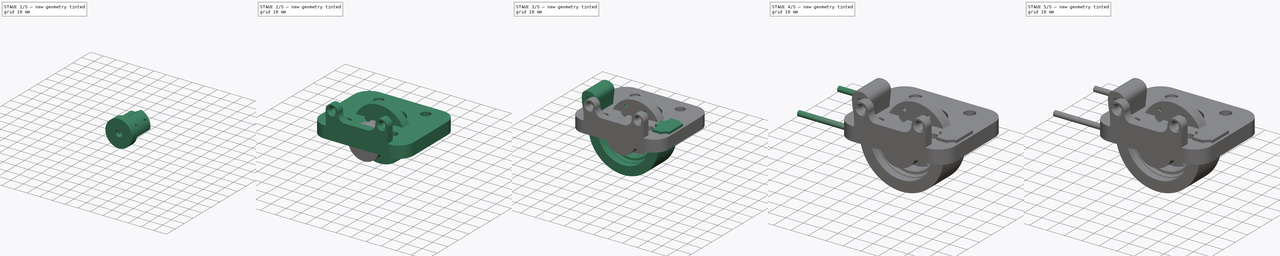
[diagram: build sequence overview — one tinted view per stage of 5, left to right]
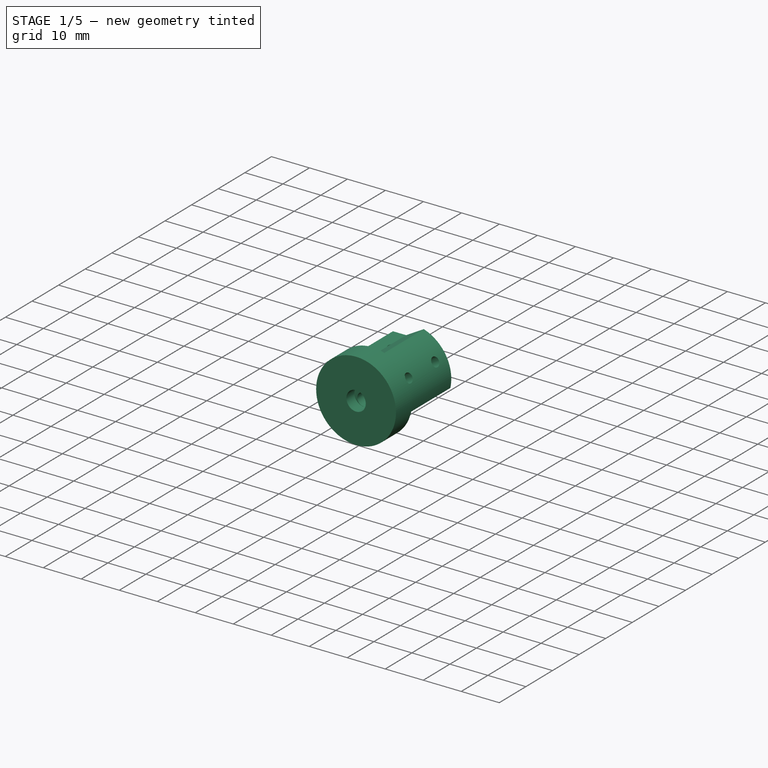
[diagram: stage 1 of 5 — iso view after this stage's code; geometry added in this stage tinted green]
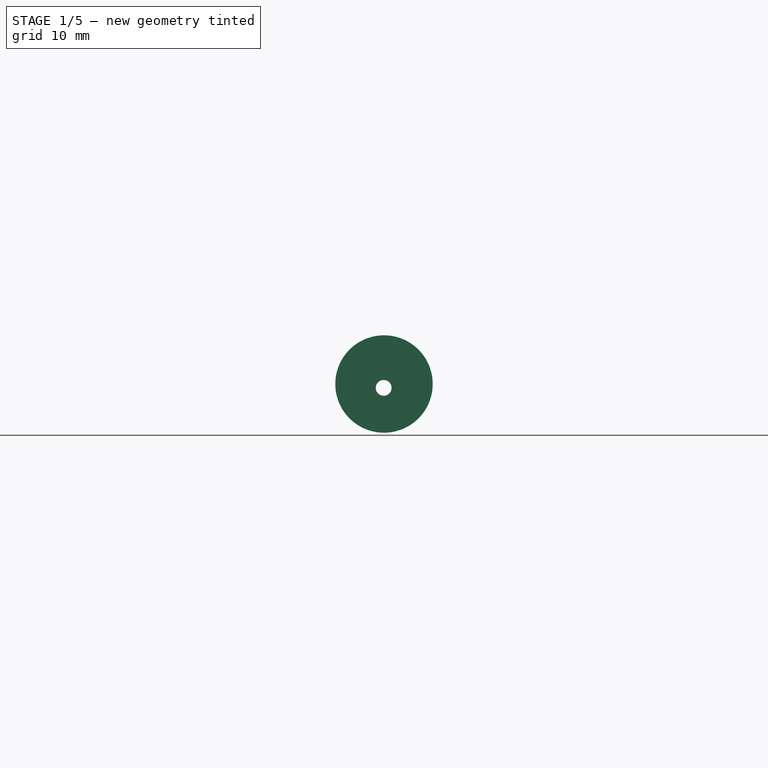
[diagram: stage 1 of 5 — front view after this stage's code; geometry added in this stage tinted green]
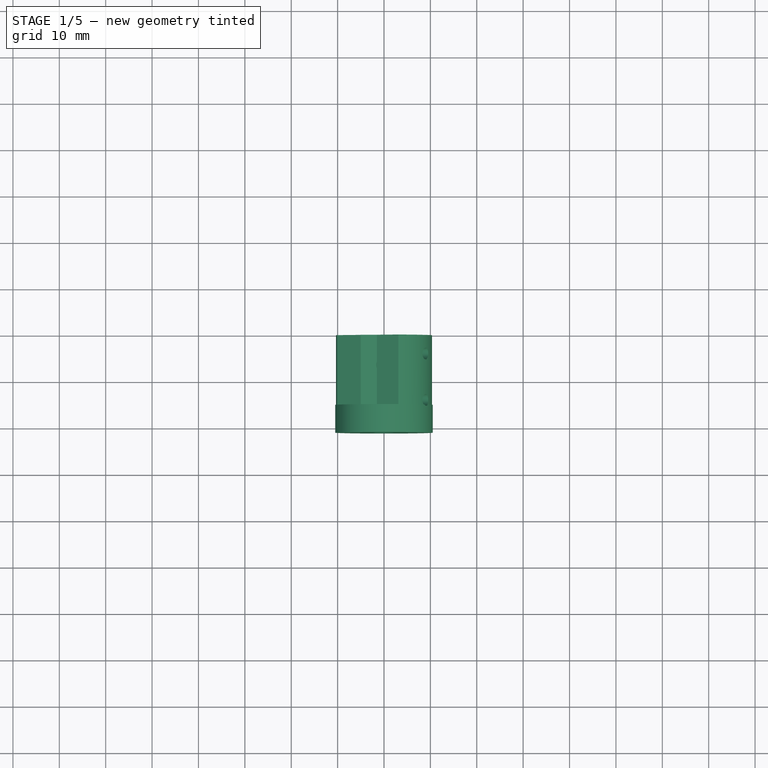
[diagram: stage 1 of 5 — top view after this stage's code; geometry added in this stage tinted green]
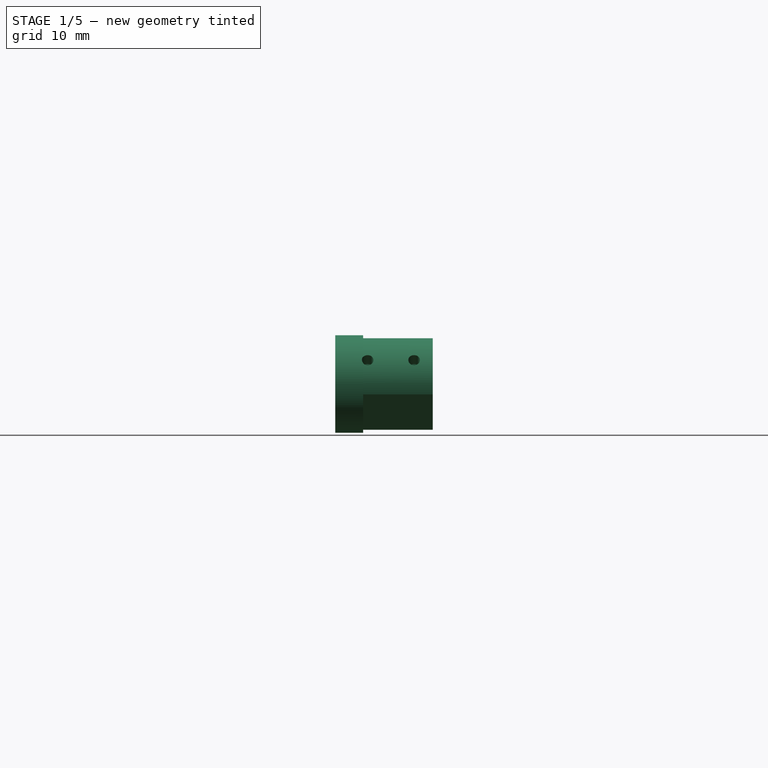
[diagram: stage 1 of 5 — right view after this stage's code; geometry added in this stage tinted green]
FCSTD DOCUMENT  (FreeCAD 0.20R29177 (Git))
Label: peristalticPump
License: All rights reserved
LicenseURL: http://en.wikipedia.org/wiki/All_rights_reserved
objects: Sketcher::SketchObject×37, PartDesign::Pad×20, PartDesign::Body×19, Part::Feature×16, PartDesign::Hole×12, App::Part×9, PartDesign::Pocket×4, PartDesign::PolarPattern×2, PartDesign::AdditivePipe×2, PartDesign::Chamfer×2, App::DocumentObjectGroup×1, PartDesign::Fillet×1, PartDesign::Plane×1
note: 157 computed .brp shape members not serialized (recipe doc carries the construction recipe); baked Part::Feature solids carry a one-line shape summary decoded from their .brp

FEATURE [Sketcher::SketchObject] Sketch001
  FullyConstrained = true
  MapMode = 5
  Placement = pos=(0,0,0) rot=(1,0,0;1.5708rad)
  Support = -> [XZ_Plane003]
  sketch-geometry (2):
    g0: Circle CenterX=0 CenterY=0 CenterZ=0 NormalX=0 NormalY=0 NormalZ=1 AngleXU=0 Radius=10.5
    g1: Circle CenterX=0 CenterY=0 CenterZ=0 NormalX=0 NormalY=0 NormalZ=1 AngleXU=0 Radius=2.55
  constraints (4):
    c: Coincident(g0,g-1)
    c: Diameter(g0) = 21
    c: Coincident(g1,g0)
    c: Diameter(g1) = 5.1
FEATURE [PartDesign::Pad] Pad001
  Direction = (0,-1,2e-16)
  Length = 21
  Length2 = 10
  Placement = pos=(0,0,0) rot=(1,0,0;1.5708rad)
  Profile = -> Sketch001
  ReferenceAxis = -> Sketch001 [N_Axis]
  Type = 0
FEATURE [Sketcher::SketchObject] Sketch003
  ExternalGeometry = -> [Pad001]
  FullyConstrained = false
  MapMode = 5
  Placement = pos=(0,0,0) rot=(-1,0,0;1.5708rad)
  Support = -> [Pad001]
  sketch-geometry (6):
    g0: ArcOfCircle CenterX=0 CenterY=0 CenterZ=0 NormalX=0 NormalY=0 NormalZ=1 AngleXU=0 Radius=10.35 StartAngle=1.87523 EndAngle=3.36076
    g1: LineSegment StartX=-3.10241 StartY=9.87408 StartZ=0 EndX=10.1045 EndY=2.24908 EndZ=0
    g2: Circle CenterX=0 CenterY=0 CenterZ=0 NormalX=0 NormalY=0 NormalZ=1 AngleXU=0 Radius=7
    g3: LineSegment StartX=-10.1024 StartY=-2.25027 StartZ=0 EndX=3.10447 EndY=-9.87527 EndZ=0
    g4: ArcOfCircle CenterX=0 CenterY=9e-16 CenterZ=0 NormalX=0 NormalY=0 NormalZ=1 AngleXU=0 Radius=10.3518 StartAngle=5.01698 EndAngle=6.5022
    g5: Circle CenterX=0 CenterY=0 CenterZ=0 NormalX=0 NormalY=0 NormalZ=1 AngleXU=0 Radius=20.6183
  constraints (16):
    c: Coincident(g0,g-1)
    c: Diameter(g-3) = 21
    c: Diameter(g0) = 20.7
    c: Coincident(g2,g0)
    c: Tangent(g1,g2)
    c: Diameter(g2) = 14
    c: Tangent(g3,g2)
    c: Parallel(g3,g1)
    c: Angle(g1,g-1) = 0.523599
    c: Coincident(g1,g4)
    c: Coincident(g3,g4)
    c: Coincident(g3,g0)
    c: Coincident(g1,g0)
    c: Distance(g1) = 15.25
    c: Distance(g3) = 15.25
    c: Coincident(g5,g0)
FEATURE [PartDesign::Pocket] Pocket
  BaseFeature = -> Pad001
  Direction = (0,-1,2e-16)
  Length = 15
  Length2 = 6
  Placement = pos=(0,0,0) rot=(1,0,0;1.5708rad)
  Profile = -> Sketch003
  ReferenceAxis = -> Sketch003 [N_Axis]
  Type = 0
FEATURE [Sketcher::SketchObject] Sketch014
  FullyConstrained = false
  MapMode = 5
  Placement = pos=(0,0,0) rot=(-1,0,0;1.5708rad)
  Support = -> [PolarPattern001]
  sketch-geometry (1):
    g0: Circle CenterX=-5.5 CenterY=3 CenterZ=0 NormalX=0 NormalY=0 NormalZ=1 AngleXU=0 Radius=1.60208
  constraints (2):
    c: DistanceY(g-1,g0) = 3
    c: DistanceX(g-2,g0) = -5.5
FEATURE [Sketcher::SketchObject] Sketch015
  FullyConstrained = false
  MapMode = 5
  Placement = pos=(0,0,0) rot=(-1,0,0;1.5708rad)
  Support = -> [Pocket]
  sketch-geometry (1):
    g0: Circle CenterX=-5.5 CenterY=3 CenterZ=0 NormalX=0 NormalY=0 NormalZ=1 AngleXU=0 Radius=1.18365
  constraints (2):
    c: DistanceY(g-1,g0) = 3
    c: DistanceX(g-2,g0) = -5.5
FEATURE [PartDesign::Hole] Hole004
  BaseFeature = -> Pocket
  CustomThreadClearance = 0
  Depth = 5
  DepthType = 0
  Diameter = 2.5
  DrillForDepth = false
  DrillPoint = 1
  DrillPointAngle = 118
  HoleCutCountersinkAngle = 90
  HoleCutCustomValues = false
  HoleCutDepth = 0
  HoleCutDiameter = 6.1
  HoleCutType = 0
  ModelThread = false
  Placement = pos=(0,0,0) rot=(1,0,0;1.5708rad)
  Profile = -> Sketch015
  Tapered = false
  TaperedAngle = 90
  ThreadClass = 0
  ThreadDepth = 5
  ThreadDepthType = 0
  ThreadDirection = 0
  ThreadFit = 0
  ThreadSize = 9
  ThreadType = 1
  Threaded = true
  UseCustomThreadClearance = false
FEATURE [PartDesign::Body] Body019  label="HoseLock"
  Group = -> [Sketch028,Pad018,Sketch030,Hole006,Sketch031,AdditivePipe001,Sketch032,Pad019,Chamfer]
  Origin = -> Origin029
  Placement = pos=(0,66.5,0) rot=(0,0,1;0rad)
  Tip = -> Chamfer
FEATURE [Sketcher::SketchObject] Sketch033
  FullyConstrained = false
  MapMode = 5
  Placement = pos=(0,0,0) rot=(1,0,0;1.5708rad)
  Support = -> [XZ_Plane030]
  sketch-geometry (4):
    g0: ArcOfCircle CenterX=0 CenterY=0 CenterZ=0 NormalX=0 NormalY=0 NormalZ=1 AngleXU=0 Radius=5 StartAngle=3.14159 EndAngle=6.28319
    g1: LineSegment StartX=5 StartY=0 StartZ=0 EndX=5 EndY=7.20089 EndZ=0
    g2: LineSegment StartX=-5 StartY=7.20089 StartZ=0 EndX=-5 EndY=0 EndZ=0
    g3: LineSegment StartX=-5 StartY=7.20089 StartZ=0 EndX=5 EndY=7.20089 EndZ=0
  constraints (9):
    c: Tangent(g0,g1) = -1.5708
    c: Tangent(g2,g0) = -1.5708
    c: Coincident(g0,g-1)
    c: Radius(g0) = 5
    c: Vertical(g2)
    c: Vertical(g1)
    c: Coincident(g3,g2)
    c: Coincident(g3,g1)
    c: Horizontal(g3)
FEATURE [PartDesign::Pad] Pad020
  Direction = (0,-1,2e-16)
  Length = 18
  Length2 = 10
  Placement = pos=(0,0,0) rot=(1,0,0;1.5708rad)
  Profile = -> Sketch033
  ReferenceAxis = -> Sketch033 [N_Axis]
  Type = 0
FEATURE [Sketcher::SketchObject] Sketch034
  FullyConstrained = false
  MapMode = 5
  Placement = pos=(0,0,0) rot=(-1,0,0;1.5708rad)
  Support = -> [Pad020]
  sketch-geometry (4):
    g0: LineSegment StartX=-7.08693 StartY=5.39137 StartZ=0 EndX=5.72343 EndY=5.39137 EndZ=0
    g1: LineSegment StartX=5.72343 StartY=5.39137 StartZ=0 EndX=5.72343 EndY=-3.24482 EndZ=0
    g2: LineSegment StartX=5.72343 StartY=-3.24482 StartZ=0 EndX=-7.08693 EndY=-3.24482 EndZ=0
    g3: LineSegment StartX=-7.08693 StartY=-3.24482 StartZ=0 EndX=-7.08693 EndY=5.39137 EndZ=0
  constraints (8):
    c: Coincident(g0,g1)
    c: Coincident(g1,g2)
    c: Coincident(g2,g3)
    c: Coincident(g3,g0)
    c: Horizontal(g0)
    c: Horizontal(g2)
    c: Vertical(g1)
    c: Vertical(g3)
FEATURE [PartDesign::Pocket] Pocket003
  BaseFeature = -> Pad020
  Direction = (0,-1,2e-16)
  Length = 10
  Length2 = 5
  Placement = pos=(0,0,0) rot=(1,0,0;1.5708rad)
  Profile = -> Sketch034
  ReferenceAxis = -> Sketch034 [N_Axis]
  Type = 0
FEATURE [Sketcher::SketchObject] Sketch035
  FullyConstrained = true
  MapMode = 5
  Placement = pos=(0,-10,2.2e-15) rot=(-1,0,0;1.5708rad)
  Support = -> [Pocket003]
FEATURE [Sketcher::SketchObject] Sketch036
  FullyConstrained = false
  MapMode = 5
  Placement = pos=(0,-10,2.2e-15) rot=(-1,0,0;1.5708rad)
  Support = -> [Pocket003]
  sketch-geometry (1):
    g0: Circle CenterX=-0.07012 CenterY=0.834162 CenterZ=0 NormalX=0 NormalY=0 NormalZ=1 AngleXU=0 Radius=2.03557
FEATURE [PartDesign::Hole] Hole007
  BaseFeature = -> Pocket003
  CustomThreadClearance = 0
  Depth = 25
  DepthType = 0
  Diameter = 3.4
  DrillForDepth = false
  DrillPoint = 1
  DrillPointAngle = 118
  HoleCutCountersinkAngle = 90
  HoleCutCustomValues = false
  HoleCutDepth = 3.4
  HoleCutDiameter = 6.1
  HoleCutType = 1
  ModelThread = false
  Placement = pos=(0,0,0) rot=(1,0,0;1.5708rad)
  Profile = -> Sketch036
  Tapered = false
  TaperedAngle = 90
  ThreadClass = 0
  ThreadDepth = 25
  ThreadDepthType = 0
  ThreadDirection = 0
  ThreadFit = 0
  ThreadSize = 9
  ThreadType = 1
  Threaded = false
  UseCustomThreadClearance = false
FEATURE [Sketcher::SketchObject] Sketch037
  FullyConstrained = false
  MapMode = 5
  Placement = pos=(0,7e-16,3.24482) rot=(1,0,0;3.14159rad)
  Support = -> [Hole007]
  sketch-geometry (1):
    g0: Circle CenterX=0 CenterY=6.489 CenterZ=0 NormalX=0 NormalY=0 NormalZ=1 AngleXU=0 Radius=1.99675
  constraints (1):
    c: PointOnObject(g0,g-2)
FEATURE [Part::Feature] M3x20_DIN_916
  Placement = pos=(-15.5,45,15.5) rot=(0,0,1;0rad)
  shape: bbox 6.44 x 23 x 5.667 mm, 458 faces, 0 solids (baked)
FEATURE [Part::Feature] M3x20_DIN_917
  Placement = pos=(24,53.5,20) rot=(0,0,1;0rad)
  shape: bbox 6.44 x 23 x 5.667 mm, 458 faces, 0 solids (baked)
FEATURE [Part::Feature] M3x20_DIN_918
  Placement = pos=(23.8,60.1,15.8) rot=(1,0,0;1.5708rad)
  shape: bbox 6.44 x 5.667 x 23 mm, 458 faces, 0 solids (baked)
FEATURE [App::DocumentObjectGroup] Group  label="Hardware"
  Group = -> [Part__Feature009,Part__Feature007,Part__Feature008,M3x20_DIN_912,M3x20_DIN_916,M3x20_DIN_914,M3x20_DIN_915,M3x20_DIN_913,M3x20_DIN_917,M3x20_DIN_918]
FEATURE [PartDesign::Hole] Hole008
  BaseFeature = -> Hole007
  CustomThreadClearance = 0
  Depth = 25
  DepthType = 0
  Diameter = 3.4
  DrillForDepth = false
  DrillPoint = 1
  DrillPointAngle = 118
  HoleCutCountersinkAngle = 90
  HoleCutCustomValues = false
  HoleCutDepth = 0
  HoleCutDiameter = 6.1
  HoleCutType = 0
  ModelThread = false
  Placement = pos=(0,0,0) rot=(1,0,0;1.5708rad)
  Profile = -> Sketch037
  Tapered = false
  TaperedAngle = 90
  ThreadClass = 0
  ThreadDepth = 25
  ThreadDepthType = 0
  ThreadDirection = 0
  ThreadFit = 0
  ThreadSize = 9
  ThreadType = 1
  Threaded = false
  UseCustomThreadClearance = false
FEATURE [PartDesign::Chamfer] Chamfer001
  Angle = 45
  Base = -> Hole008 [Edge6]
  BaseFeature = -> Hole008
  ChamferType = 0
  FlipDirection = false
  Placement = pos=(0,0,0) rot=(1,0,0;1.5708rad)
  Size = 1
  Size2 = 1
  SupportTransform = false
  UseAllEdges = false
FEATURE [PartDesign::Body] Body  label="nema17base"
  Group = -> [Sketch,Pad,Hole,Sketch029,Hole005,Sketch038,Pad021,Hole009,Hole010,Fillet]
  Origin = -> Origin001
  Placement = pos=(0,40,-8.9e-15) rot=(1,0,0;4.71239rad)
  Tip = -> Fillet
FEATURE [PartDesign::Plane] DatumPlane
  AttachmentOffset = pos=(2,0,0) rot=(0,-1,0;1.0472rad)
  Length = 79.989
  MapMode = 3
  Placement = pos=(2,0,0) rot=(0.866025,0,-0.5;3.14159rad)
  ResizeMode = 0
  Support = -> [Hole004]
  Width = 61.6877
FEATURE [Sketcher::SketchObject] Sketch039
  FullyConstrained = false
  MapMode = 5
  Placement = pos=(2,0,0) rot=(0.866025,0,-0.5;3.14159rad)
  Support = -> [DatumPlane]
  sketch-geometry (2):
    g0: Circle CenterX=-0.991399 CenterY=14.0194 CenterZ=0 NormalX=0 NormalY=0 NormalZ=1 AngleXU=0 Radius=1.26617
    g1: Circle CenterX=-0.991399 CenterY=4.01445 CenterZ=0 NormalX=0 NormalY=0 NormalZ=1 AngleXU=0 Radius=1.26572
  constraints (1):
    c: Vertical(g1,g0)
FEATURE [PartDesign::Hole] Hole011
  BaseFeature = -> Hole004
  CustomThreadClearance = 0
  Depth = 10
  DepthType = 0
  Diameter = 2.5
  DrillForDepth = false
  DrillPoint = 1
  DrillPointAngle = 118
  HoleCutCountersinkAngle = 90
  HoleCutCustomValues = false
  HoleCutDepth = 0
  HoleCutDiameter = 6.1
  HoleCutType = 0
  ModelThread = false
  Placement = pos=(0,0,0) rot=(1,0,0;1.5708rad)
  Profile = -> Sketch039
  Tapered = false
  TaperedAngle = 90
  ThreadClass = 0
  ThreadDepth = 10
  ThreadDepthType = 0
  ThreadDirection = 0
  ThreadFit = 0
  ThreadSize = 9
  ThreadType = 1
  Threaded = true
  UseCustomThreadClearance = false
FEATURE [PartDesign::Body] Body001  label="rotorShaftSet"
  Group = -> [Sketch001,Pad001,Sketch003,Pocket,Sketch015,Hole004,DatumPlane,Sketch039,Hole011]
  Origin = -> Origin003
  Placement = pos=(0,64,0) rot=(0,0,1;0rad)
  Tip = -> Hole011
FEATURE [App::Part] Part
  Group = -> [Body,Body001,Body002,Body007,Body019,Body020]
  Origin = -> Origin
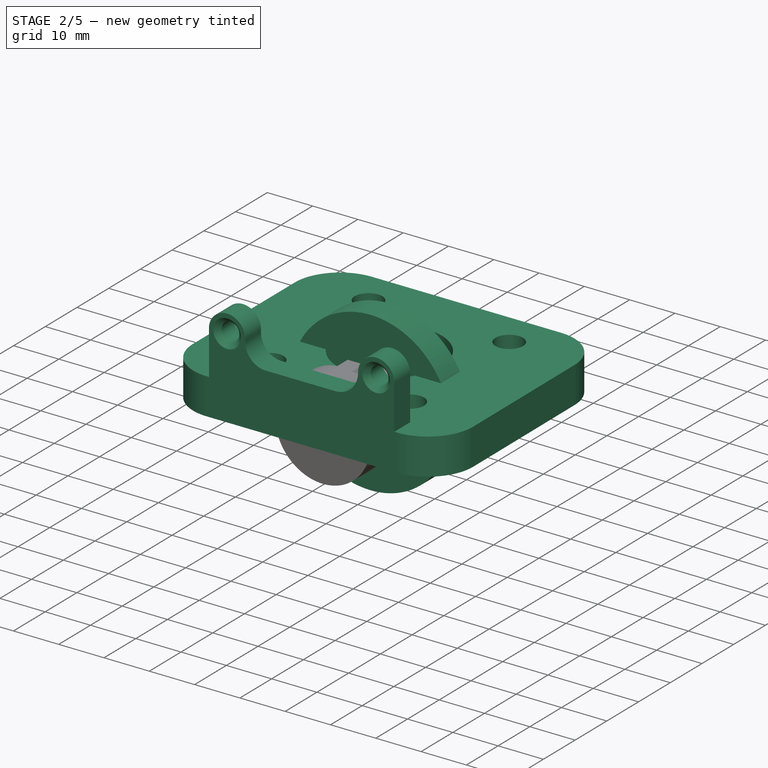
[diagram: stage 2 of 5 — iso view after this stage's code; geometry added in this stage tinted green]
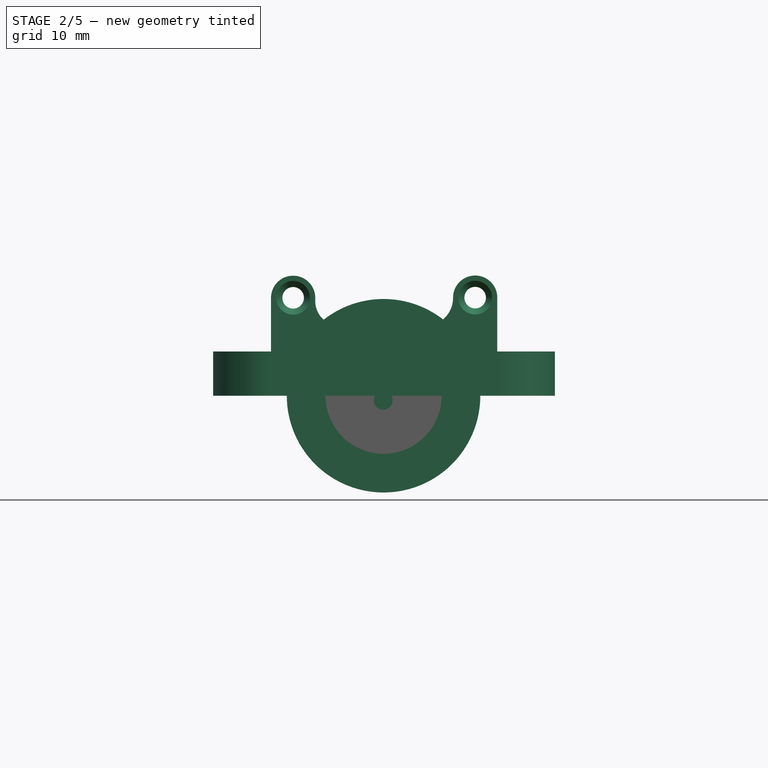
[diagram: stage 2 of 5 — front view after this stage's code; geometry added in this stage tinted green]
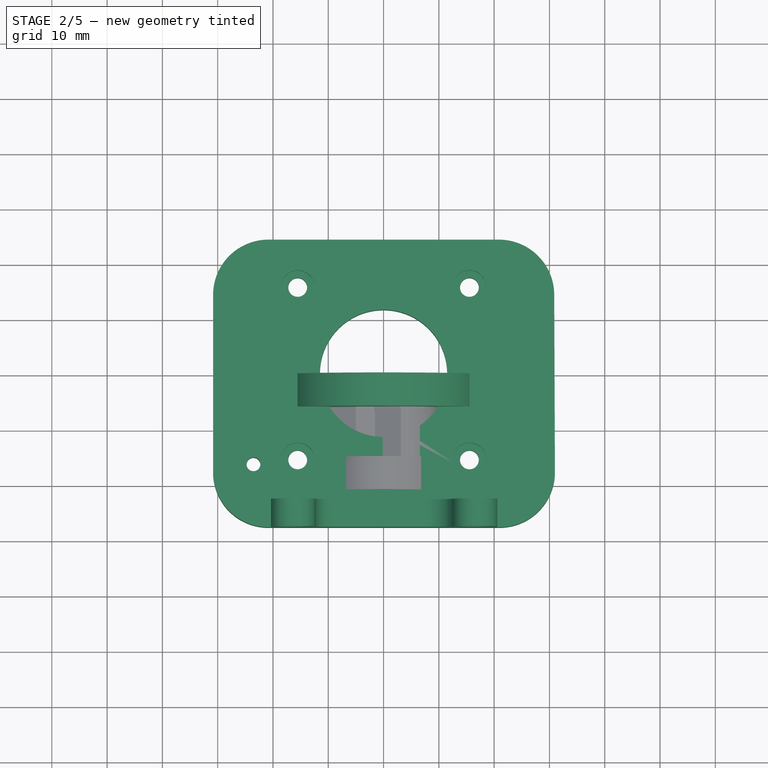
[diagram: stage 2 of 5 — top view after this stage's code; geometry added in this stage tinted green]
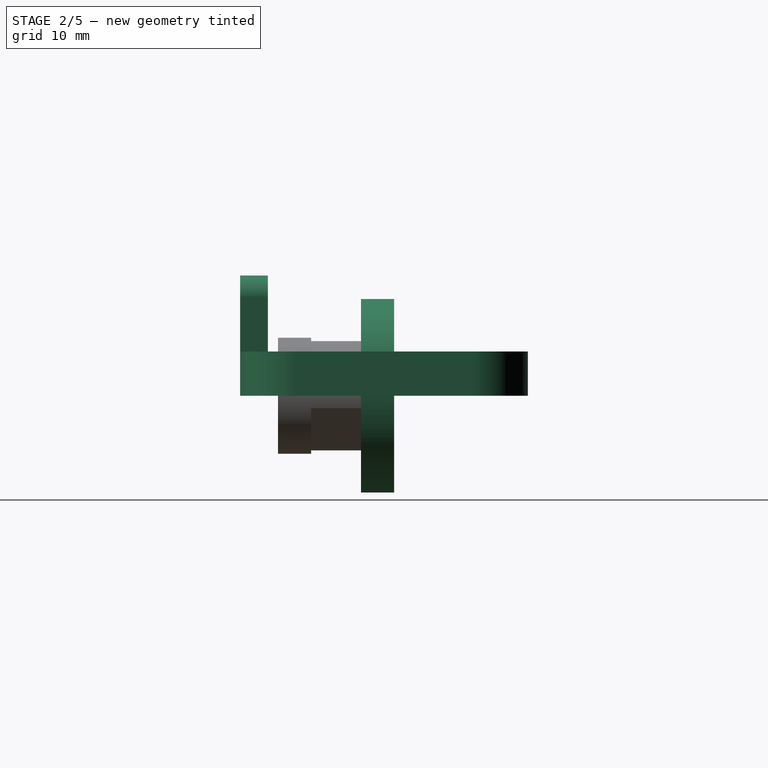
[diagram: stage 2 of 5 — right view after this stage's code; geometry added in this stage tinted green]
FEATURE [Sketcher::SketchObject] Sketch
  FullyConstrained = false
  MapMode = 5
  Support = -> [XY_Plane001]
  sketch-geometry (9):
    g0: LineSegment StartX=-30.8307 StartY=24.1824 StartZ=0 EndX=30.8307 EndY=24.1824 EndZ=0
    g1: LineSegment StartX=30.8307 StartY=24.1824 StartZ=0 EndX=31.031 EndY=-27.8428 EndZ=0
    g2: LineSegment StartX=31.031 StartY=-27.8428 StartZ=0 EndX=-30.8307 EndY=-27.8428 EndZ=0
    g3: LineSegment StartX=-30.8307 StartY=-27.8428 StartZ=0 EndX=-30.8307 EndY=24.1824 EndZ=0
    g4: Circle CenterX=0 CenterY=0 CenterZ=0 NormalX=0 NormalY=0 NormalZ=1 AngleXU=0 Radius=11.5
    g5: Circle CenterX=-15.5285 CenterY=15.5978 CenterZ=0 NormalX=0 NormalY=0 NormalZ=1 AngleXU=0 Radius=1.5
    g6: Circle CenterX=15.5285 CenterY=15.5978 CenterZ=0 NormalX=0 NormalY=0 NormalZ=1 AngleXU=0 Radius=1.5
    g7: Circle CenterX=15.5285 CenterY=-15.5978 CenterZ=0 NormalX=0 NormalY=0 NormalZ=1 AngleXU=0 Radius=1.5
    g8: Circle CenterX=-15.5285 CenterY=-15.5978 CenterZ=0 NormalX=0 NormalY=0 NormalZ=1 AngleXU=0 Radius=1.5
  constraints (17):
    c: Coincident(g0,g1)
    c: Coincident(g1,g2)
    c: Coincident(g2,g3)
    c: Coincident(g3,g0)
    c: Horizontal(g2)
    c: Vertical(g3)
    c: Symmetric(g0,g0,g-2)
    c: Symmetric(g0,g1,g-1)
    c: Coincident(g4,g-1)
    c: Symmetric(g5,g8,g-1)
    c: Symmetric(g5,g6,g-2)
    c: Symmetric(g7,g6,g-1)
    c: Diameter(g7) = 3
    c: Equal(g7,g6)
    c: Equal(g7,g8)
    c: Equal(g7,g5)
    c: Diameter(g4) = 23
FEATURE [Part::Feature] Part__Feature  label="nema17_bottom_40mm___ _________"
  shape: bbox 42.33 x 12 x 42.33 mm, 63 faces (baked)
FEATURE [Part::Feature] Part__Feature001  label="radial ball bearing_68_din_PreviewCfg"
  Placement = pos=(3.5e-15,4.0875,6.9e-15) rot=(0,0,-1;1.5708rad)
  shape: bbox 13.75 x 3.175 x 13.75 mm, 102 faces (baked)
FEATURE [Part::Feature] Part__Feature002  label="nema17_middle_40mm___ _________"
  Placement = pos=(6.9e-15,8.5,-1.04e-14) rot=(0,0,1;0rad)
  shape: bbox 42.3 x 23.5 x 42.3 mm, 28 faces (baked)
FEATURE [Part::Feature] Part__Feature003  label="nema17_top_40mm___ _________"
  Placement = pos=(6.9e-15,32,3.5e-15) rot=(0,0,1;0rad)
  shape: bbox 42.63 x 12.6 x 42.63 mm, 73 faces (baked)
FEATURE [Part::Feature] Part__Feature004  label="radial ball bearing_68_din_PreviewCfg001"
  Placement = pos=(6.9e-15,39.0125,3.5e-15) rot=(0,0,1;1.5708rad)
  shape: bbox 13.75 x 3.175 x 13.75 mm, 102 faces (baked)
FEATURE [Part::Feature] Part__Feature005  label="nema17_shaft_40mm___ _________"
  Placement = pos=(3.47e-14,2,3.12e-14) rot=(0,-1,0;1.99625rad)
  shape: bbox 5 x 60 x 5 mm, 10 faces (baked)
FEATURE [App::Part] _7HM15_0904S  label="17HM15-0904S"
  Group = -> [Part__Feature,Part__Feature001,Part__Feature002,Part__Feature003,Part__Feature004,Part__Feature005]
  Origin = -> Origin002
FEATURE [PartDesign::Pad] Pad
  Direction = (0,0,1)
  Length = 8
  Length2 = 10
  Profile = -> Sketch
  ReferenceAxis = -> Sketch [N_Axis]
  Type = 0
FEATURE [PartDesign::Hole] Hole
  BaseFeature = -> Pad
  CustomThreadClearance = 0
  Depth = 25
  DepthType = 0
  Diameter = 3.4
  DrillForDepth = false
  DrillPoint = 1
  DrillPointAngle = 118
  HoleCutCountersinkAngle = 90
  HoleCutCustomValues = false
  HoleCutDepth = 3.4
  HoleCutDiameter = 6.1
  HoleCutType = 1
  ModelThread = false
  Profile = -> Pad [Edge21,Edge18,Edge27,Edge24]
  Tapered = false
  TaperedAngle = 90
  ThreadClass = 0
  ThreadDepth = 25
  ThreadDepthType = 0
  ThreadDirection = 0
  ThreadFit = 0
  ThreadSize = 9
  ThreadType = 1
  Threaded = false
  UseCustomThreadClearance = false
FEATURE [PartDesign::Body] Body002  label="rotorBasePlate"
  Group = -> [Sketch002,Pad002,Sketch004,Pocket001,Sketch005,Hole001,PolarPattern]
  Origin = -> Origin004
  Placement = pos=(0,54,0) rot=(0,0,1;0rad)
  Tip = -> PolarPattern
FEATURE [Sketcher::SketchObject] Sketch011
  FullyConstrained = true
  MapMode = 5
  Placement = pos=(0,0,0) rot=(1,0,0;1.5708rad)
  Support = -> [XZ_Plane011]
  sketch-geometry (1):
    g0: Circle CenterX=0 CenterY=0 CenterZ=0 NormalX=0 NormalY=0 NormalZ=1 AngleXU=0 Radius=17.5
  constraints (2):
    c: Coincident(g0,g-1)
    c: Diameter(g0) = 35
FEATURE [PartDesign::Pad] Pad007
  Direction = (0,-1,2e-16)
  Length = 6
  Length2 = 10
  Placement = pos=(0,0,0) rot=(1,0,0;1.5708rad)
  Profile = -> Sketch011
  ReferenceAxis = -> Sketch011 [N_Axis]
  Type = 0
FEATURE [Sketcher::SketchObject] Sketch029
  FullyConstrained = false
  MapMode = 5
  Placement = pos=(0,0,8) rot=(0,0,1;0rad)
  Support = -> [Hole]
  sketch-geometry (1):
    g0: Circle CenterX=-23.5251 CenterY=-16.4444 CenterZ=0 NormalX=0 NormalY=0 NormalZ=1 AngleXU=0 Radius=4.7481
FEATURE [PartDesign::Hole] Hole005
  BaseFeature = -> Hole
  CustomThreadClearance = 0
  Depth = 25
  DepthType = 0
  Diameter = 2.5
  DrillForDepth = false
  DrillPoint = 1
  DrillPointAngle = 118
  HoleCutCountersinkAngle = 90
  HoleCutCustomValues = false
  HoleCutDepth = 0
  HoleCutDiameter = 6.1
  HoleCutType = 0
  ModelThread = false
  Profile = -> Sketch029
  Tapered = false
  TaperedAngle = 90
  ThreadClass = 0
  ThreadDepth = 25
  ThreadDepthType = 0
  ThreadDirection = 0
  ThreadFit = 0
  ThreadSize = 9
  ThreadType = 1
  Threaded = true
  UseCustomThreadClearance = false
FEATURE [Sketcher::SketchObject] Sketch038
  FullyConstrained = false
  MapMode = 5
  Placement = pos=(0,-27.8428,0) rot=(1,0,0;1.5708rad)
  Support = -> [Hole005]
  sketch-geometry (13):
    g0: LineSegment StartX=20.5693 StartY=17.7422 StartZ=0 EndX=20.5693 EndY=5.33648 EndZ=0
    g1: LineSegment StartX=20.5693 StartY=5.33648 StartZ=0 EndX=-20.3519 EndY=5.33648 EndZ=0
    g2: LineSegment StartX=-20.3519 StartY=5.33648 StartZ=0 EndX=-20.3519 EndY=17.7107 EndZ=0
    g3: Circle CenterX=-16.3519 CenterY=17.7107 CenterZ=0 NormalX=0 NormalY=0 NormalZ=1 AngleXU=0 Radius=0.49152
    g4: Circle CenterX=16.5693 CenterY=17.7422 CenterZ=0 NormalX=0 NormalY=0 NormalZ=1 AngleXU=0 Radius=0.40481
    g5: ArcOfCircle CenterX=-16.3519 CenterY=17.7107 CenterZ=0 NormalX=0 NormalY=0 NormalZ=1 AngleXU=0 Radius=4 StartAngle=1.00416 EndAngle=3.14159
    g6: ArcOfCircle CenterX=16.5693 CenterY=17.7422 CenterZ=0 NormalX=0 NormalY=0 NormalZ=1 AngleXU=0 Radius=4 StartAngle=0 EndAngle=1.53724
    g7: LineSegment StartX=-12.3519 StartY=17.7107 StartZ=0 EndX=-12.3519 EndY=17.1163 EndZ=0
    g8: LineSegment StartX=-7.85797 StartY=12.6224 StartZ=0 EndX=7.49862 EndY=12.6224 EndZ=0
    g9: ArcOfCircle CenterX=-16.3519 CenterY=17.7107 CenterZ=0 NormalX=0 NormalY=0 NormalZ=1 AngleXU=0 Radius=4 StartAngle=0 EndAngle=1.00416
    g10: ArcOfCircle CenterX=-7.85797 CenterY=17.1163 CenterZ=0 NormalX=0 NormalY=0 NormalZ=1 AngleXU=0 Radius=4.49393 StartAngle=3.14159 EndAngle=4.71239
    g11: ArcOfCircle CenterX=7.49862 CenterY=17.6932 CenterZ=0 NormalX=0 NormalY=0 NormalZ=1 AngleXU=0 Radius=5.07085 StartAngle=4.71239 EndAngle=6.28858
    g12: ArcOfCircle CenterX=16.5693 CenterY=17.7422 CenterZ=0 NormalX=0 NormalY=0 NormalZ=1 AngleXU=0 Radius=4 StartAngle=1.53724 EndAngle=3.14699
  constraints (23):
    c: Coincident(g0,g1)
    c: Coincident(g1,g2)
    c: Horizontal(g1)
    c: Vertical(g0)
    c: Vertical(g2)
    c: Tangent(g2,g5) = 1.5708
    c: Tangent(g0,g6) = 1.5708
    c: Radius(g6) = 4
    c: Radius(g5) = 4
    c: Vertical(g7)
    c: Horizontal(g8)
    c: Tangent(g7,g9) = 1.5708
    c: Tangent(g7,g10) = -1.5708
    c: Tangent(g8,g10) = -1.5708
    c: Tangent(g8,g11) = -1.5708
    c: Radius(g12) = 4
    c: Tangent(g6,g12) = -1.5708
    c: Tangent(g12,g11) = 1.5708
    c: Coincident(g6,g4)
    c: Radius(g9) = 4
    c: Tangent(g9,g5,g5) = -1.5708
    c: Coincident(g5,g9)
    c: Coincident(g5,g3)
FEATURE [PartDesign::Pad] Pad021
  BaseFeature = -> Hole005
  Direction = (0,-1,2e-16)
  Length = 5
  Length2 = 10
  Profile = -> Sketch038
  ReferenceAxis = -> Sketch038 [N_Axis]
  Reversed = true
  Type = 0
FEATURE [PartDesign::Hole] Hole009
  BaseFeature = -> Pad021
  CustomThreadClearance = 0
  Depth = 25
  DepthType = 0
  Diameter = 3.9
  DrillForDepth = false
  DrillPoint = 1
  DrillPointAngle = 118
  HoleCutCountersinkAngle = 90
  HoleCutCustomValues = false
  HoleCutDepth = 0
  HoleCutDiameter = 6.1
  HoleCutType = 2
  ModelThread = false
  Profile = -> Pad021 [Edge76,Edge75]
  Tapered = false
  TaperedAngle = 90
  ThreadClass = 0
  ThreadDepth = 25
  ThreadDepthType = 0
  ThreadDirection = 0
  ThreadFit = 0
  ThreadSize = 10
  ThreadType = 1
  Threaded = false
  UseCustomThreadClearance = false
FEATURE [PartDesign::Body] Body007  label="RotorLid"
  Group = -> [Sketch011,Pad007,Sketch012,Pocket002,Sketch013,Hole002,PolarPattern001,Sketch014,Hole003]
  Origin = -> Origin011
  Placement = pos=(0,68,0) rot=(0,0,1;0rad)
  Tip = -> Hole003
FEATURE [PartDesign::Hole] Hole010
  BaseFeature = -> Hole009
  CustomThreadClearance = 0
  Depth = 25
  DepthType = 0
  Diameter = 3.9
  DrillForDepth = false
  DrillPoint = 1
  DrillPointAngle = 118
  HoleCutCountersinkAngle = 90
  HoleCutCustomValues = false
  HoleCutDepth = 0
  HoleCutDiameter = 6.1
  HoleCutType = 2
  ModelThread = false
  Profile = -> Sketch038
  Tapered = false
  TaperedAngle = 90
  ThreadClass = 0
  ThreadDepth = 25
  ThreadDepthType = 0
  ThreadDirection = 0
  ThreadFit = 0
  ThreadSize = 10
  ThreadType = 1
  Threaded = false
  UseCustomThreadClearance = false
FEATURE [PartDesign::Body] Body020  label="ClosingPivot"
  Group = -> [Sketch033,Pad020,Sketch034,Pocket003,Sketch035,Sketch036,Hole007,Sketch037,Hole008,Chamfer001]
  Origin = -> Origin030
  Placement = pos=(24,66.5,19) rot=(0,1,0;3.14159rad)
  Tip = -> Chamfer001
FEATURE [PartDesign::Fillet] Fillet
  Base = -> Hole010 [Edge1,Edge5,Edge2,Edge8]
  BaseFeature = -> Hole010
  Radius = 10
  SupportTransform = false
  UseAllEdges = false
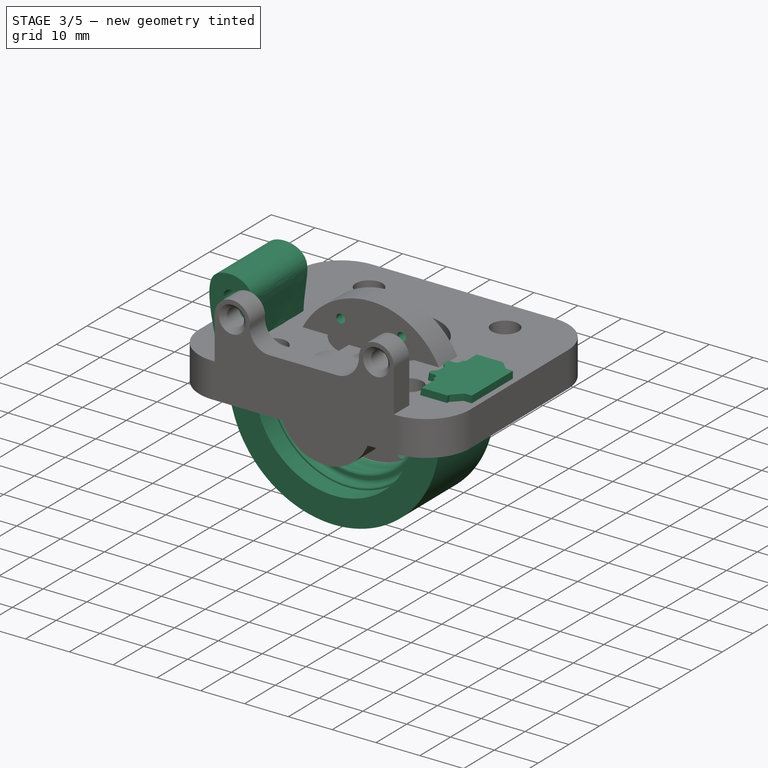
[diagram: stage 3 of 5 — iso view after this stage's code; geometry added in this stage tinted green]
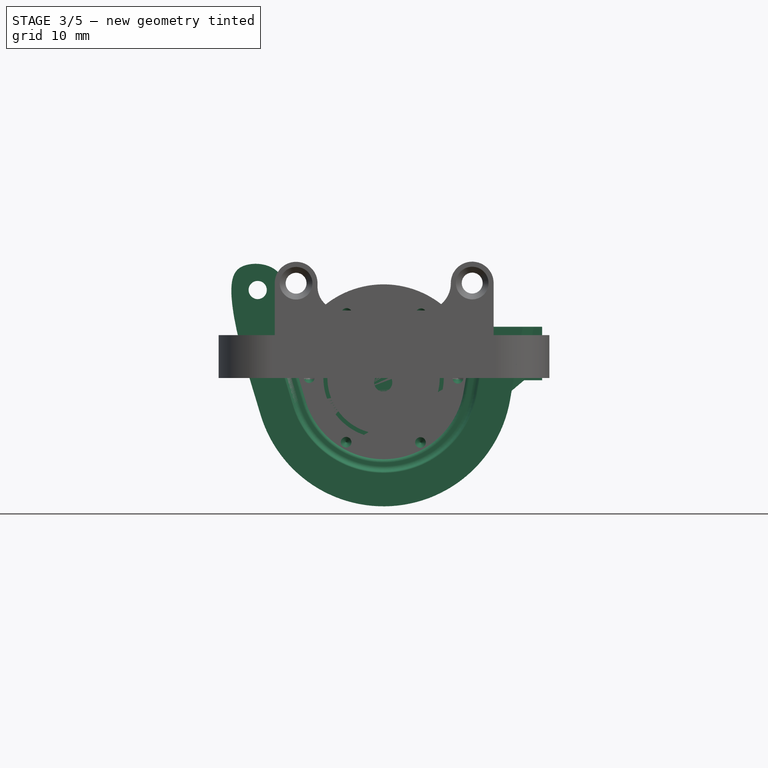
[diagram: stage 3 of 5 — front view after this stage's code; geometry added in this stage tinted green]
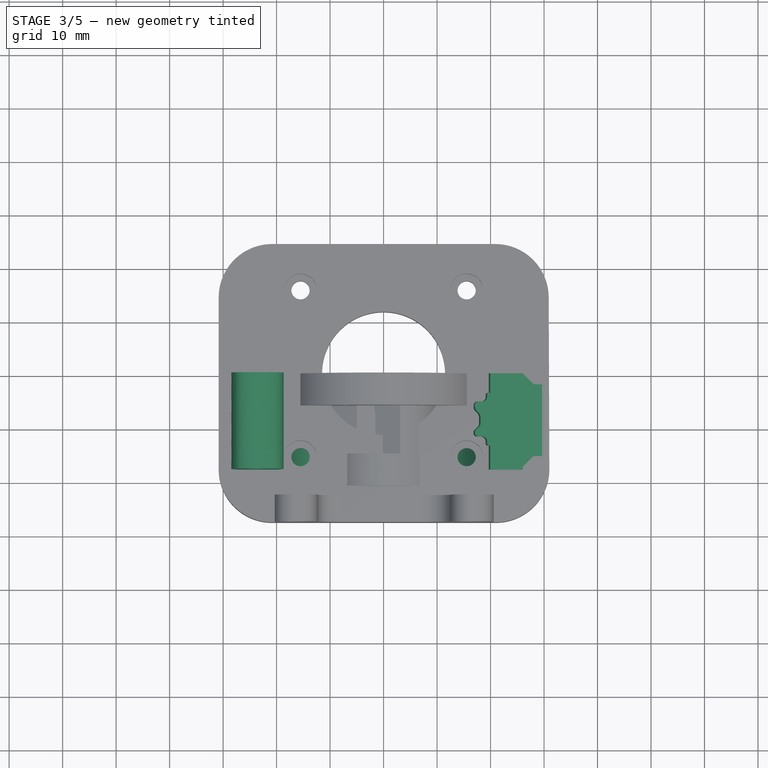
[diagram: stage 3 of 5 — top view after this stage's code; geometry added in this stage tinted green]
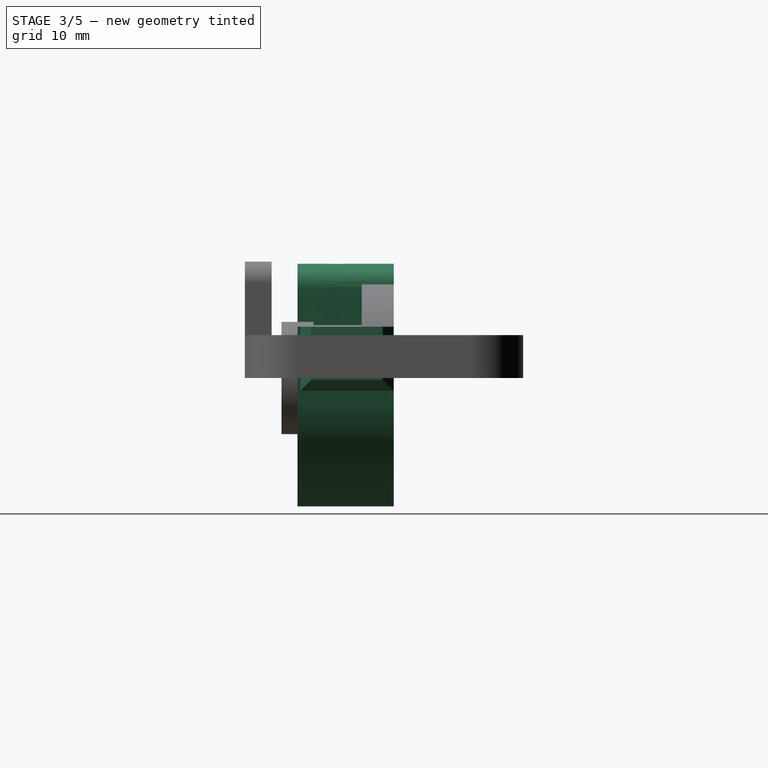
[diagram: stage 3 of 5 — right view after this stage's code; geometry added in this stage tinted green]
FEATURE [Sketcher::SketchObject] Sketch012
  FullyConstrained = false
  MapMode = 5
  Placement = pos=(0,-6,1.3e-15) rot=(1,0,0;1.5708rad)
  Support = -> [Pad007]
  sketch-geometry (4):
    g0: ArcOfCircle CenterX=0 CenterY=0 CenterZ=0 NormalX=0 NormalY=0 NormalZ=1 AngleXU=0 Radius=11.25 StartAngle=2.95239 EndAngle=4.37978
    g1: LineSegment StartX=3.69222 StartY=10.6269 StartZ=0 EndX=-11.0492 EndY=2.11587 EndZ=0
    g2: LineSegment StartX=-3.6732 StartY=-10.6334 StartZ=0 EndX=11.0454 EndY=-2.13564 EndZ=0
    g3: ArcOfCircle CenterX=0 CenterY=0 CenterZ=0 NormalX=0 NormalY=0 NormalZ=1 AngleXU=0 Radius=11.25 StartAngle=6.09219 EndAngle=7.51959
  constraints (10):
    c: Coincident(g0,g-1)
    c: Parallel(g2,g1)
    c: Diameter(g0) = 22.5
    c: Angle(g-1,g2) = 0.523599
    c: Coincident(g3,g1)
    c: Coincident(g0,g1)
    c: Equal(g0,g3)
    c: Coincident(g0,g2)
    c: Coincident(g3,g2)
    c: Coincident(g0,g3)
FEATURE [PartDesign::Pocket] Pocket002
  BaseFeature = -> Pad007
  Direction = (0,1,-2e-16)
  Length = 2
  Length2 = 5
  Placement = pos=(0,0,0) rot=(1,0,0;1.5708rad)
  Profile = -> Sketch012
  ReferenceAxis = -> Sketch012 [N_Axis]
  Type = 0
FEATURE [Sketcher::SketchObject] Sketch013
  FullyConstrained = false
  MapMode = 5
  Placement = pos=(0,-6,1.3e-15) rot=(1,0,0;1.5708rad)
  Support = -> [Pocket002]
  sketch-geometry (1):
    g0: Circle CenterX=7.00317 CenterY=12.0101 CenterZ=0 NormalX=0 NormalY=0 NormalZ=1 AngleXU=0 Radius=0.949969
FEATURE [PartDesign::Hole] Hole002  label="HoleRollerLid"
  BaseFeature = -> Pocket002
  CustomThreadClearance = 0
  Depth = 3
  DepthType = 0
  Diameter = 2
  DrillForDepth = false
  DrillPoint = 1
  DrillPointAngle = 118
  HoleCutCountersinkAngle = 90
  HoleCutCustomValues = false
  HoleCutDepth = 0
  HoleCutDiameter = 6.1
  HoleCutType = 0
  ModelThread = false
  Placement = pos=(0,0,0) rot=(1,0,0;1.5708rad)
  Profile = -> Sketch013
  Tapered = false
  TaperedAngle = 90
  ThreadClass = 0
  ThreadDepth = 3
  ThreadDepthType = 0
  ThreadDirection = 0
  ThreadFit = 0
  ThreadSize = 0
  ThreadType = 0
  Threaded = false
  UseCustomThreadClearance = false
FEATURE [PartDesign::PolarPattern] PolarPattern001
  Angle = 360
  Axis = -> Sketch013 [N_Axis]
  BaseFeature = -> Hole002
  Occurrences = 6
  Originals = -> [Hole002]
  Placement = pos=(0,0,0) rot=(1,0,0;1.5708rad)
FEATURE [PartDesign::Body] Body018
  Group = -> [Sketch026,Sketch027,AdditivePipe]
  Origin = -> Origin028
  Tip = -> AdditivePipe
FEATURE [App::Part] Part008  label="SiliconeHose3mm"
  Group = -> [Body018]
  Origin = -> Origin027
  Placement = pos=(0.1,57.7,-16.5) rot=(-0.57735,0.57735,0.57735;2.0944rad)
FEATURE [Part::Feature] M3x20_DIN_912
  Placement = pos=(15.5,45,15.5) rot=(0,0,1;0rad)
  shape: bbox 6.44 x 23 x 5.667 mm, 458 faces, 0 solids (baked)
FEATURE [Part::Feature] M3x20_DIN_913
  Placement = pos=(-23.5,63.5,16.5) rot=(0,0,1;0rad)
  shape: bbox 6.44 x 23 x 5.667 mm, 458 faces, 0 solids (baked)
FEATURE [Part::Feature] M3x20_DIN_914
  Placement = pos=(15.5,45,-15.5) rot=(0,0,1;0rad)
  shape: bbox 6.44 x 23 x 5.667 mm, 458 faces, 0 solids (baked)
FEATURE [Part::Feature] M3x20_DIN_915
  Placement = pos=(-15.5,45,-15.5) rot=(0,0,1;0rad)
  shape: bbox 6.44 x 23 x 5.667 mm, 458 faces, 0 solids (baked)
FEATURE [Sketcher::SketchObject] Sketch028
  FullyConstrained = false
  MapMode = 5
  Placement = pos=(0,0,0) rot=(1,0,0;1.5708rad)
  Support = -> [XZ_Plane029]
  sketch-geometry (18):
    g0: ArcOfCircle CenterX=0 CenterY=0 CenterZ=0 NormalX=0 NormalY=0 NormalZ=1 AngleXU=0 Radius=18 StartAngle=3.43516 EndAngle=6.11035
    g1: ArcOfCircle CenterX=0 CenterY=0 CenterZ=0 NormalX=0 NormalY=0 NormalZ=1 AngleXU=0 Radius=24 StartAngle=3.43516 EndAngle=6.11035
    g2-g7: Circle x6 (B-spline internal-alignment scaffolding for g8; pole/knot coordinates omitted)
    g8: BSplineCurve PolesCount=6 KnotsCount=4 Degree=3 IsPeriodic=0
    g9-g12: GeomPoint x4 (B-spline internal-alignment scaffolding for g8; pole/knot coordinates omitted)
    g13: LineSegment StartX=-22.9732 StartY=-6.94478 StartZ=0 EndX=-26.3444 EndY=4.20708 EndZ=0
    g14: LineSegment StartX=-17.2299 StartY=-5.20859 StartZ=0 EndX=-19.3342 EndY=1.75229 EndZ=0
    g15: LineSegment StartX=23.6424 StartY=-4.12744 StartZ=0 EndX=26.0359 EndY=9.58253 EndZ=0
    g16: LineSegment StartX=17.7318 StartY=-3.09558 StartZ=0 EndX=19.9451 EndY=9.58253 EndZ=0
    g17: LineSegment StartX=19.9451 StartY=9.58253 StartZ=0 EndX=26.0359 EndY=9.58253 EndZ=0
  constraints (19):
    c: Coincident(g0,g-1)
    c: Radius(g0) = 18
    c: Coincident(g1,g0)
    c: Radius(g1) = 24
    c: Weight(g2) = 1
    c: Equal(g2, g3-g7) x5
    c: InternalAlignment(g2-g7 -> g8) x6
    c: InternalAlignment(g9-g12 -> g8) x4
    c: Coincident(g14,g8)
    c: Coincident(g8,g13)
    c: Parallel(g13,g14)
    c: Coincident(g17,g16)
    c: Coincident(g17,g15)
    c: Parallel(g16,g15)
    c: Tangent(g0,g16) = -1.5708
    c: Tangent(g0,g14) = 1.5708
    c: Tangent(g1,g15) = -1.5708
    c: Tangent(g1,g13) = 1.5708
    c: Horizontal(g17)
FEATURE [PartDesign::Pad] Pad018
  Direction = (0,-1,2e-16)
  Length = 18
  Length2 = 10
  Placement = pos=(0,0,0) rot=(1,0,0;1.5708rad)
  Profile = -> Sketch028
  ReferenceAxis = -> Sketch028 [N_Axis]
  Type = 0
FEATURE [Sketcher::SketchObject] Sketch030
  FullyConstrained = false
  MapMode = 5
  Placement = pos=(0,0,0) rot=(-1,0,0;1.5708rad)
  Support = -> [Pad018]
  sketch-geometry (1):
    g0: Circle CenterX=-23.5329 CenterY=-16.4419 CenterZ=0 NormalX=0 NormalY=0 NormalZ=1 AngleXU=0 Radius=1.25457
FEATURE [PartDesign::Hole] Hole006
  BaseFeature = -> Pad018
  CustomThreadClearance = 0
  Depth = 25
  DepthType = 0
  Diameter = 3.4
  DrillForDepth = false
  DrillPoint = 1
  DrillPointAngle = 118
  HoleCutCountersinkAngle = 90
  HoleCutCustomValues = false
  HoleCutDepth = 3.4
  HoleCutDiameter = 6.1
  HoleCutType = 1
  ModelThread = false
  Placement = pos=(0,0,0) rot=(1,0,0;1.5708rad)
  Profile = -> Sketch030
  Tapered = false
  TaperedAngle = 90
  ThreadClass = 0
  ThreadDepth = 25
  ThreadDepthType = 0
  ThreadDirection = 0
  ThreadFit = 0
  ThreadSize = 9
  ThreadType = 1
  Threaded = false
  UseCustomThreadClearance = false
FEATURE [Sketcher::SketchObject] Sketch031
  FullyConstrained = false
  MapMode = 5
  Placement = pos=(0,2.1e-15,9.58253) rot=(0,0,1;3.14159rad)
  Support = -> [Hole006]
  sketch-geometry (22):
    g0: LineSegment StartX=-17.0848 StartY=6.01696 StartZ=0 EndX=-17.0848 EndY=6.21696 EndZ=0
    g1: LineSegment StartX=-17.4384 StartY=7.07043 StartZ=0 EndX=-17.7502 EndY=7.38223 EndZ=0
    g2: LineSegment StartX=-18.1184 StartY=8.27118 StartZ=0 EndX=-18.1184 EndY=9.4103 EndZ=0
    g3: LineSegment StartX=-17.8916 StartY=9.95782 StartZ=0 EndX=-17.2221 EndY=10.6273 EndZ=0
    g4: LineSegment StartX=-17.0848 StartY=10.9586 StartZ=0 EndX=-17.0848 EndY=11.1586 EndZ=0
    g5: LineSegment StartX=-17.7415 StartY=11.8153 StartZ=0 EndX=-18.408 EndY=11.8153 EndZ=0
    g6: LineSegment StartX=-20.7382 StartY=3.6607 StartZ=0 EndX=-19.7049 EndY=3.6607 EndZ=0
    g7: LineSegment StartX=-19.3596 StartY=4.00597 StartZ=0 EndX=-19.3596 EndY=4.40865 EndZ=0
    g8: LineSegment StartX=-20.7382 StartY=3.6607 StartZ=0 EndX=-20.7382 EndY=13.5149 EndZ=0
    g9: LineSegment StartX=-20.7382 StartY=13.5149 StartZ=0 EndX=-19.7049 EndY=13.5149 EndZ=0
    g10: LineSegment StartX=-19.3596 StartY=13.1696 StartZ=0 EndX=-19.3596 EndY=12.767 EndZ=0
    g11: LineSegment StartX=-18.5202 StartY=5.24813 StartZ=0 EndX=-17.8537 EndY=5.24813 EndZ=0
    g12: ArcOfCircle CenterX=-18.408 CenterY=12.767 CenterZ=0 NormalX=0 NormalY=0 NormalZ=1 AngleXU=0 Radius=0.951684 StartAngle=3.14159 EndAngle=4.71239
    g13: ArcOfCircle CenterX=-18.5202 CenterY=4.40865 CenterZ=0 NormalX=0 NormalY=0 NormalZ=1 AngleXU=0 Radius=0.839474 StartAngle=1.5708 EndAngle=3.14159
    g14: ArcOfCircle CenterX=-17.8537 CenterY=6.01696 CenterZ=0 NormalX=0 NormalY=0 NormalZ=1 AngleXU=0 Radius=0.768835 StartAngle=4.71239 EndAngle=6.28319
    g15: ArcOfCircle CenterX=-17.7415 CenterY=11.1586 CenterZ=0 NormalX=0 NormalY=0 NormalZ=1 AngleXU=0 Radius=0.656625 StartAngle=1.434e-13 EndAngle=1.5708
    g16: ArcOfCircle CenterX=-17.3441 CenterY=9.4103 CenterZ=0 NormalX=0 NormalY=0 NormalZ=1 AngleXU=0 Radius=0.774306 StartAngle=2.35619 EndAngle=3.14159
    g17: ArcOfCircle CenterX=-16.8612 CenterY=8.27118 CenterZ=0 NormalX=0 NormalY=0 NormalZ=1 AngleXU=0 Radius=1.25716 StartAngle=3.14159 EndAngle=3.92699
    g18: ArcOfCircle CenterX=-17.5534 CenterY=10.9586 CenterZ=0 NormalX=0 NormalY=0 NormalZ=1 AngleXU=0 Radius=0.468542 StartAngle=5.49779 EndAngle=6.28319
    g19: ArcOfCircle CenterX=-18.2918 CenterY=6.21696 CenterZ=0 NormalX=0 NormalY=0 NormalZ=1 AngleXU=0 Radius=1.20699 StartAngle=2e-16 EndAngle=0.785398
    g20: ArcOfCircle CenterX=-19.7049 CenterY=4.00597 CenterZ=0 NormalX=0 NormalY=0 NormalZ=1 AngleXU=0 Radius=0.345271 StartAngle=4.71239 EndAngle=6.28319
    g21: ArcOfCircle CenterX=-19.7049 CenterY=13.1696 CenterZ=0 NormalX=0 NormalY=0 NormalZ=1 AngleXU=0 Radius=0.345271 StartAngle=-1.155e-13 EndAngle=1.5708
  constraints (39):
    c: Vertical(g0)
    c: Vertical(g2)
    c: Horizontal(g5)
    c: Angle(g2,g3) = 2.35619
    c: Angle(g1,g2) = 2.35619
    c: Horizontal(g6)
    c: Vertical(g7)
    c: Coincident(g8,g9)
    c: Horizontal(g9)
    c: Vertical(g8)
    c: Tangent(g10,g7)
    c: Tangent(g10,g12) = -1.5708
    c: Tangent(g5,g12) = 1.5708
    c: Tangent(g7,g13) = 1.5708
    c: Tangent(g11,g13) = 1.5708
    c: Tangent(g11,g14) = -1.5708
    c: Tangent(g0,g14) = -1.5708
    c: Tangent(g5,g15) = -1.5708
    c: Tangent(g4,g15) = -1.5708
    c: Tangent(g3,g16) = 1.5708
    c: Tangent(g2,g16) = 1.5708
    c: Tangent(g1,g17) = 1.5708
    c: Tangent(g2,g17) = 1.5708
    c: Tangent(g3,g18) = -1.5708
    c: Tangent(g4,g18) = -1.5708
    c: Tangent(g1,g19) = -1.5708
    c: Tangent(g0,g19) = -1.5708
    c: Equal(g0,g4)
    c: Tangent(g6,g20) = -1.5708
    c: Tangent(g7,g20) = -1.5708
    c: Tangent(g10,g21) = 1.5708
    c: Tangent(g9,g21) = 1.5708
    c: Tangent(g4,g0)
    c: Horizontal(g11)
    c: Equal(g5,g11)
    c: Equal(g10,g7)
    c: Equal(g9,g6)
    c: Coincident(g8,g6)
    c: Distance(g0) = 0.2
FEATURE [PartDesign::AdditivePipe] AdditivePipe001
  AuxilleryCurvelinear = true
  AuxillerySpineTangent = false
  BaseFeature = -> Hole006
  Binormal = (0,0,0)
  Mode = 0
  Placement = pos=(0,0,0) rot=(1,0,0;1.5708rad)
  Profile = -> Sketch031
  Spine = -> Hole006 [Edge15,Edge14,Edge12]
  SpineTangent = false
  Transformation = 0
  Transition = 0
FEATURE [Sketcher::SketchObject] Sketch032
  FullyConstrained = false
  MapMode = 5
  Placement = pos=(0,2.1e-15,9.58253) rot=(0,0,1;3.14159rad)
  Support = -> [AdditivePipe001]
  sketch-geometry (4):
    g0: LineSegment StartX=-23.5591 StartY=15.451 StartZ=0 EndX=-29.6539 EndY=15.451 EndZ=0
    g1: LineSegment StartX=-29.6539 StartY=15.451 StartZ=0 EndX=-29.6539 EndY=2.05595 EndZ=0
    g2: LineSegment StartX=-29.6539 StartY=2.05595 StartZ=0 EndX=-23.5591 EndY=2.05595 EndZ=0
    g3: LineSegment StartX=-23.5591 StartY=2.05595 StartZ=0 EndX=-23.5591 EndY=15.451 EndZ=0
  constraints (8):
    c: Coincident(g0,g1)
    c: Coincident(g1,g2)
    c: Coincident(g2,g3)
    c: Coincident(g3,g0)
    c: Horizontal(g0)
    c: Horizontal(g2)
    c: Vertical(g1)
    c: Vertical(g3)
FEATURE [PartDesign::Pad] Pad019
  BaseFeature = -> AdditivePipe001
  Direction = (0,2e-16,1)
  Length = 10
  Length2 = 10
  Placement = pos=(0,0,0) rot=(1,0,0;1.5708rad)
  Profile = -> Sketch032
  ReferenceAxis = -> Sketch032 [N_Axis]
  Reversed = true
  Type = 0
FEATURE [PartDesign::Chamfer] Chamfer
  Angle = 45
  Base = -> Pad019 [Edge26,Edge28,Edge27]
  BaseFeature = -> Pad019
  ChamferType = 0
  FlipDirection = false
  Placement = pos=(0,0,0) rot=(1,0,0;1.5708rad)
  Size = 2
  Size2 = 1
  SupportTransform = false
  UseAllEdges = false
FEATURE [PartDesign::Hole] Hole003
  BaseFeature = -> PolarPattern001
  CustomThreadClearance = 0
  Depth = 25
  DepthType = 0
  Diameter = 3.4
  DrillForDepth = false
  DrillPoint = 1
  DrillPointAngle = 118
  HoleCutCountersinkAngle = 90
  HoleCutCustomValues = false
  HoleCutDepth = 3.4
  HoleCutDiameter = 6.1
  HoleCutType = 2
  ModelThread = false
  Placement = pos=(0,0,0) rot=(1,0,0;1.5708rad)
  Profile = -> Sketch014
  Tapered = false
  TaperedAngle = 90
  ThreadClass = 0
  ThreadDepth = 25
  ThreadDepthType = 0
  ThreadDirection = 0
  ThreadFit = 0
  ThreadSize = 9
  ThreadType = 1
  Threaded = false
  UseCustomThreadClearance = false
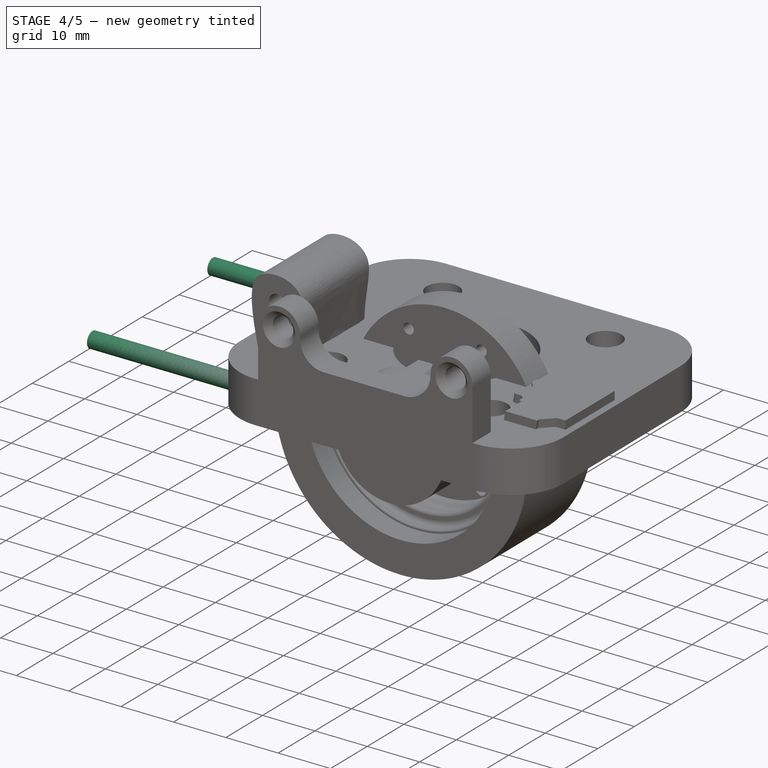
[diagram: stage 4 of 5 — iso view after this stage's code; geometry added in this stage tinted green]
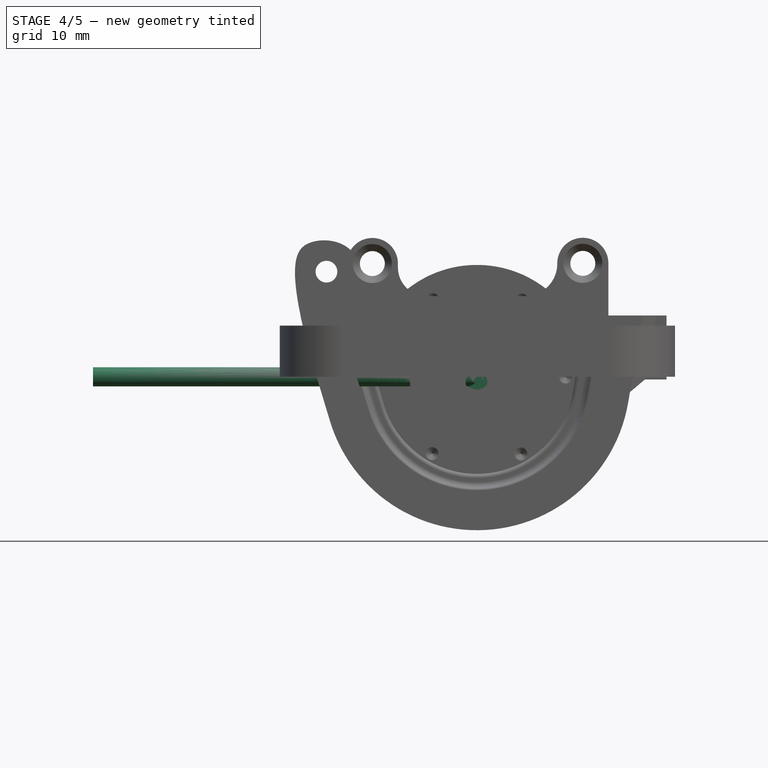
[diagram: stage 4 of 5 — front view after this stage's code; geometry added in this stage tinted green]
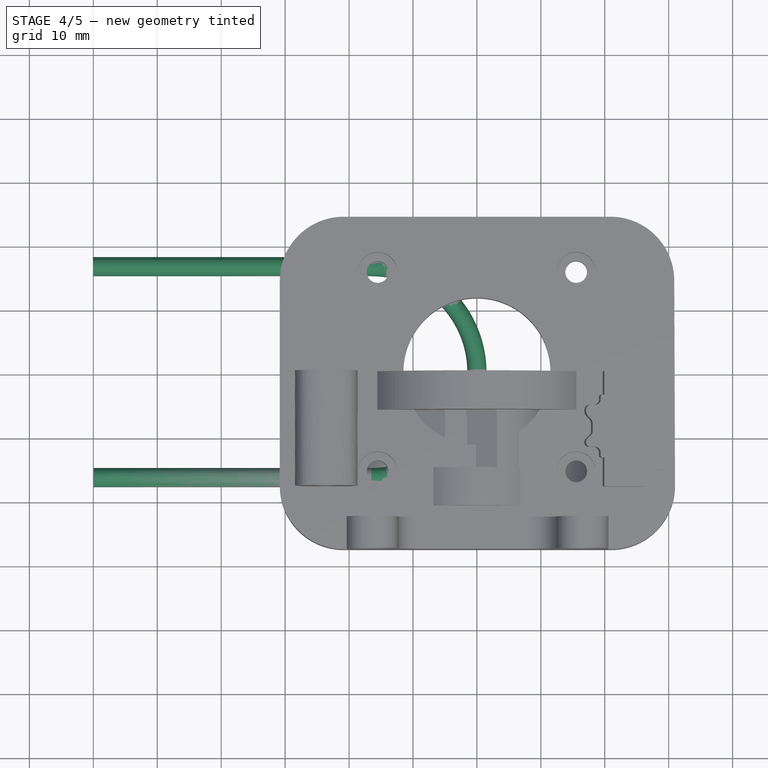
[diagram: stage 4 of 5 — top view after this stage's code; geometry added in this stage tinted green]
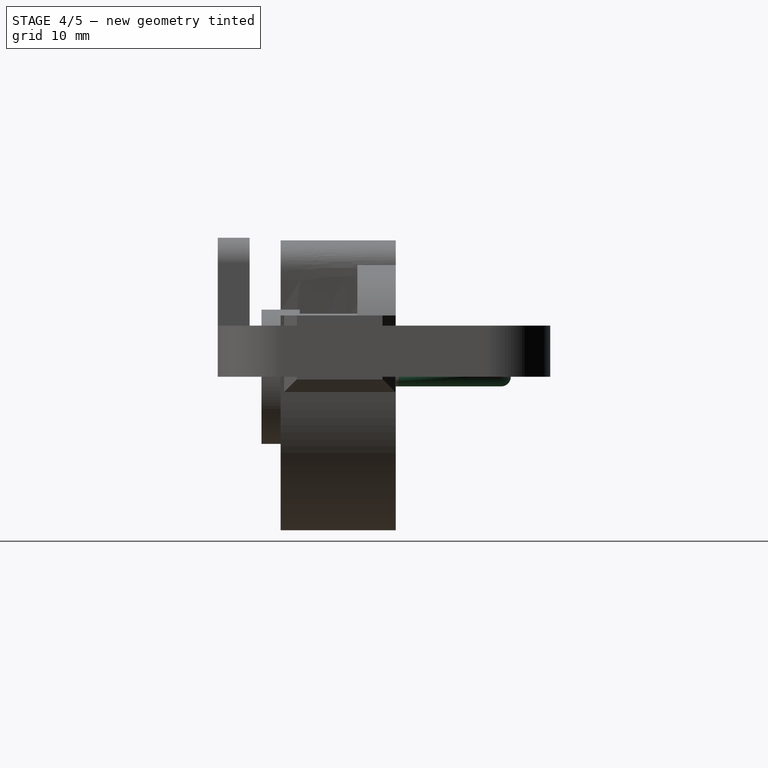
[diagram: stage 4 of 5 — right view after this stage's code; geometry added in this stage tinted green]
FEATURE [PartDesign::Body] Body010
  Group = -> [Sketch018,Pad010]
  Origin = -> Origin016
  Placement = pos=(0,-1,0) rot=(0,0,1;0rad)
  Tip = -> Pad010
FEATURE [Sketcher::SketchObject] Sketch019
  FullyConstrained = true
  MapMode = 5
  Placement = pos=(0,0,0) rot=(1,0,0;1.5708rad)
  Support = -> [XZ_Plane017]
  sketch-geometry (2):
    g0: Circle CenterX=0 CenterY=0 CenterZ=0 NormalX=0 NormalY=0 NormalZ=1 AngleXU=0 Radius=2
    g1: Circle CenterX=0 CenterY=0 CenterZ=0 NormalX=0 NormalY=0 NormalZ=1 AngleXU=0 Radius=1
  constraints (4):
    c: Coincident(g0,g-1)
    c: Coincident(g1,g0)
    c: Diameter(g1) = 2
    c: Diameter(g0) = 4
FEATURE [PartDesign::Pad] Pad011
  Direction = (0,-1,-2e-16)
  Length = 7
  Length2 = 10
  Placement = pos=(0,0,0) rot=(1,0,0;1.5708rad)
  Profile = -> Sketch019
  ReferenceAxis = -> Sketch019 [N_Axis]
  Type = 0
FEATURE [PartDesign::Body] Body011
  Group = -> [Sketch019,Pad011]
  Origin = -> Origin017
  Placement = pos=(0,-4.5,0) rot=(0,0,1;0rad)
  Tip = -> Pad011
FEATURE [App::Part] Part004  label="pinTefflonRoller002"
  Group = -> [Body010,Body011]
  Origin = -> Origin015
  Placement = pos=(-13.9,66,-2e-16) rot=(0,0,1;0rad)
FEATURE [Sketcher::SketchObject] Sketch020
  FullyConstrained = true
  MapMode = 5
  Placement = pos=(0,0,0) rot=(1,0,0;1.5708rad)
  Support = -> [XZ_Plane019]
  sketch-geometry (1):
    g0: Circle CenterX=0 CenterY=0 CenterZ=0 NormalX=0 NormalY=0 NormalZ=1 AngleXU=0 Radius=1
  constraints (2):
    c: Coincident(g0,g-1)
    c: Diameter(g0) = 2
FEATURE [PartDesign::Pad] Pad012
  Direction = (0,-1,-2e-16)
  Length = 13
  Length2 = 10
  Placement = pos=(0,0,0) rot=(1,0,0;1.5708rad)
  Profile = -> Sketch020
  ReferenceAxis = -> Sketch020 [N_Axis]
  Type = 0
FEATURE [PartDesign::Body] Body012
  Group = -> [Sketch020,Pad012]
  Origin = -> Origin019
  Placement = pos=(0,-1,0) rot=(0,0,1;0rad)
  Tip = -> Pad012
FEATURE [Sketcher::SketchObject] Sketch021
  FullyConstrained = true
  MapMode = 5
  Placement = pos=(0,0,0) rot=(1,0,0;1.5708rad)
  Support = -> [XZ_Plane020]
  sketch-geometry (2):
    g0: Circle CenterX=0 CenterY=0 CenterZ=0 NormalX=0 NormalY=0 NormalZ=1 AngleXU=0 Radius=2
    g1: Circle CenterX=0 CenterY=0 CenterZ=0 NormalX=0 NormalY=0 NormalZ=1 AngleXU=0 Radius=1
  constraints (4):
    c: Coincident(g0,g-1)
    c: Coincident(g1,g0)
    c: Diameter(g1) = 2
    c: Diameter(g0) = 4
FEATURE [PartDesign::Pad] Pad013
  Direction = (0,-1,-2e-16)
  Length = 7
  Length2 = 10
  Placement = pos=(0,0,0) rot=(1,0,0;1.5708rad)
  Profile = -> Sketch021
  ReferenceAxis = -> Sketch021 [N_Axis]
  Type = 0
FEATURE [PartDesign::Body] Body013
  Group = -> [Sketch021,Pad013]
  Origin = -> Origin020
  Placement = pos=(0,-4.5,0) rot=(0,0,1;0rad)
  Tip = -> Pad013
FEATURE [App::Part] Part005  label="pinTefflonRoller003"
  Group = -> [Body012,Body013]
  Origin = -> Origin018
  Placement = pos=(-7,66,-12) rot=(0,0,1;0rad)
FEATURE [Sketcher::SketchObject] Sketch022
  FullyConstrained = true
  MapMode = 5
  Placement = pos=(0,0,0) rot=(1,0,0;1.5708rad)
  Support = -> [XZ_Plane022]
  sketch-geometry (1):
    g0: Circle CenterX=0 CenterY=0 CenterZ=0 NormalX=0 NormalY=0 NormalZ=1 AngleXU=0 Radius=1
  constraints (2):
    c: Coincident(g0,g-1)
    c: Diameter(g0) = 2
FEATURE [PartDesign::Pad] Pad014
  Direction = (0,-1,-2e-16)
  Length = 13
  Length2 = 10
  Placement = pos=(0,0,0) rot=(1,0,0;1.5708rad)
  Profile = -> Sketch022
  ReferenceAxis = -> Sketch022 [N_Axis]
  Type = 0
FEATURE [PartDesign::Body] Body014
  Group = -> [Sketch022,Pad014]
  Origin = -> Origin022
  Placement = pos=(0,-1,0) rot=(0,0,1;0rad)
  Tip = -> Pad014
FEATURE [Sketcher::SketchObject] Sketch023
  FullyConstrained = true
  MapMode = 5
  Placement = pos=(0,0,0) rot=(1,0,0;1.5708rad)
  Support = -> [XZ_Plane023]
  sketch-geometry (2):
    g0: Circle CenterX=0 CenterY=0 CenterZ=0 NormalX=0 NormalY=0 NormalZ=1 AngleXU=0 Radius=2
    g1: Circle CenterX=0 CenterY=0 CenterZ=0 NormalX=0 NormalY=0 NormalZ=1 AngleXU=0 Radius=1
  constraints (4):
    c: Coincident(g0,g-1)
    c: Coincident(g1,g0)
    c: Diameter(g1) = 2
    c: Diameter(g0) = 4
FEATURE [PartDesign::Pad] Pad015
  Direction = (0,-1,-2e-16)
  Length = 7
  Length2 = 10
  Placement = pos=(0,0,0) rot=(1,0,0;1.5708rad)
  Profile = -> Sketch023
  ReferenceAxis = -> Sketch023 [N_Axis]
  Type = 0
FEATURE [PartDesign::Body] Body015
  Group = -> [Sketch023,Pad015]
  Origin = -> Origin023
  Placement = pos=(0,-4.5,0) rot=(0,0,1;0rad)
  Tip = -> Pad015
FEATURE [App::Part] Part006  label="pinTefflonRoller004"
  Group = -> [Body014,Body015]
  Origin = -> Origin021
  Placement = pos=(6.9,66,-12.1) rot=(0,0,1;0rad)
FEATURE [Sketcher::SketchObject] Sketch024
  FullyConstrained = true
  MapMode = 5
  Placement = pos=(0,0,0) rot=(1,0,0;1.5708rad)
  Support = -> [XZ_Plane025]
  sketch-geometry (1):
    g0: Circle CenterX=0 CenterY=0 CenterZ=0 NormalX=0 NormalY=0 NormalZ=1 AngleXU=0 Radius=1
  constraints (2):
    c: Coincident(g0,g-1)
    c: Diameter(g0) = 2
FEATURE [PartDesign::Pad] Pad016
  Direction = (0,-1,-2e-16)
  Length = 13
  Length2 = 10
  Placement = pos=(0,0,0) rot=(1,0,0;1.5708rad)
  Profile = -> Sketch024
  ReferenceAxis = -> Sketch024 [N_Axis]
  Type = 0
FEATURE [PartDesign::Body] Body016
  Group = -> [Sketch024,Pad016]
  Origin = -> Origin025
  Placement = pos=(0,-1,0) rot=(0,0,1;0rad)
  Tip = -> Pad016
FEATURE [Sketcher::SketchObject] Sketch025
  FullyConstrained = true
  MapMode = 5
  Placement = pos=(0,0,0) rot=(1,0,0;1.5708rad)
  Support = -> [XZ_Plane026]
  sketch-geometry (2):
    g0: Circle CenterX=0 CenterY=0 CenterZ=0 NormalX=0 NormalY=0 NormalZ=1 AngleXU=0 Radius=2
    g1: Circle CenterX=0 CenterY=0 CenterZ=0 NormalX=0 NormalY=0 NormalZ=1 AngleXU=0 Radius=1
  constraints (4):
    c: Coincident(g0,g-1)
    c: Coincident(g1,g0)
    c: Diameter(g1) = 2
    c: Diameter(g0) = 4
FEATURE [PartDesign::Pad] Pad017
  Direction = (0,-1,-2e-16)
  Length = 7
  Length2 = 10
  Placement = pos=(0,0,0) rot=(1,0,0;1.5708rad)
  Profile = -> Sketch025
  ReferenceAxis = -> Sketch025 [N_Axis]
  Type = 0
FEATURE [PartDesign::Body] Body017
  Group = -> [Sketch025,Pad017]
  Origin = -> Origin026
  Placement = pos=(0,-4.5,0) rot=(0,0,1;0rad)
  Tip = -> Pad017
FEATURE [App::Part] Part007  label="pinTefflonRoller005"
  Group = -> [Body016,Body017]
  Origin = -> Origin024
  Placement = pos=(13.9,66,-7e-16) rot=(0,0,1;0rad)
FEATURE [Sketcher::SketchObject] Sketch026  label="profile"
  AttachmentOffset = pos=(0,0,0) rot=(0,0,1;1.5708rad)
  FullyConstrained = true
  MapMode = 5
  Placement = pos=(0,0,0) rot=(0.57735,-0.57735,0.57735;2.0944rad)
  Support = -> [XZ_Plane028]
  sketch-geometry (2):
    g0: Circle CenterX=0 CenterY=0 CenterZ=0 NormalX=0 NormalY=0 NormalZ=1 AngleXU=0 Radius=0.5
    g1: Circle CenterX=0 CenterY=0 CenterZ=0 NormalX=0 NormalY=0 NormalZ=1 AngleXU=0 Radius=1.5
  constraints (4):
    c: Coincident(g0,g-1)
    c: Coincident(g1,g0)
    c: Diameter(g0) = 1
    c: Diameter(g1) = 3
FEATURE [Sketcher::SketchObject] Sketch027  label="path"
  FullyConstrained = false
  MapMode = 5
  Support = -> [XY_Plane028,Sketch026]
  sketch-geometry (3):
    g0: ArcOfCircle CenterX=-16.5 CenterY=0 CenterZ=0 NormalX=0 NormalY=0 NormalZ=1 AngleXU=0 Radius=16.5 StartAngle=4.71239 EndAngle=7.85398
    g1: LineSegment StartX=-16.5 StartY=16.5 StartZ=0 EndX=-60.0555 EndY=16.5 EndZ=0
    g2: LineSegment StartX=-16.5 StartY=-16.5 StartZ=0 EndX=-59.9208 EndY=-16.5 EndZ=0
  constraints (9):
    c: PointOnObject(g-1,g0)
    c: PointOnObject(g0,g-1)
    c: Diameter(g0) = 33
    c: Vertical(g0,g0)
    c: Vertical(g0,g0)
    c: Coincident(g1,g0)
    c: Horizontal(g1)
    c: Coincident(g2,g0)
    c: Horizontal(g2)
FEATURE [PartDesign::AdditivePipe] AdditivePipe
  AuxilleryCurvelinear = true
  AuxillerySpineTangent = false
  Binormal = (0,0,0)
  Mode = 0
  Placement = pos=(0,0,0) rot=(1,0,0;1.5708rad)
  Profile = -> Sketch026 [Edge2]
  Spine = -> Sketch027
  SpineTangent = false
  Transformation = 0
  Transition = 0
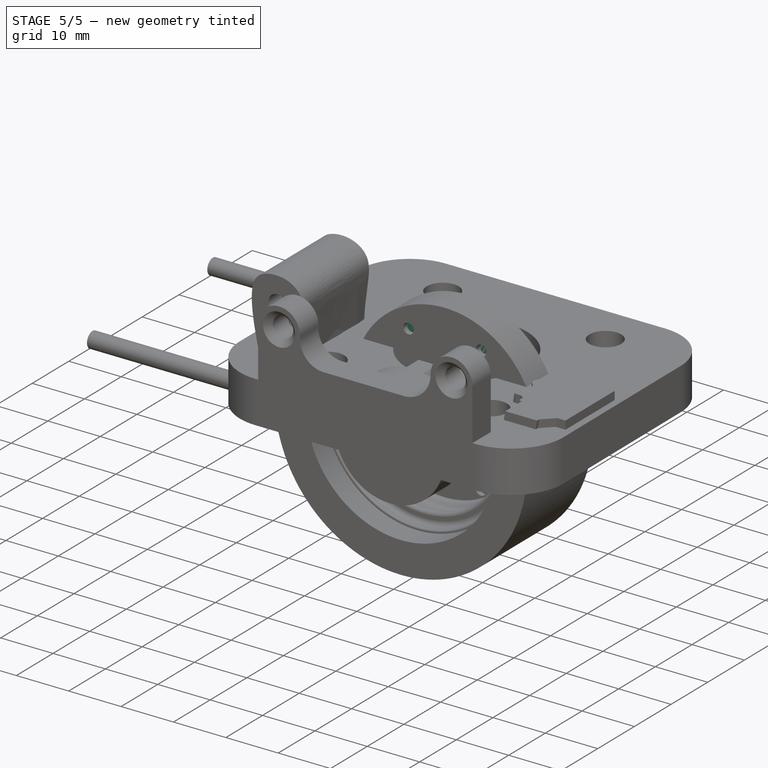
[diagram: stage 5 of 5 — iso view after this stage's code; geometry added in this stage tinted green]
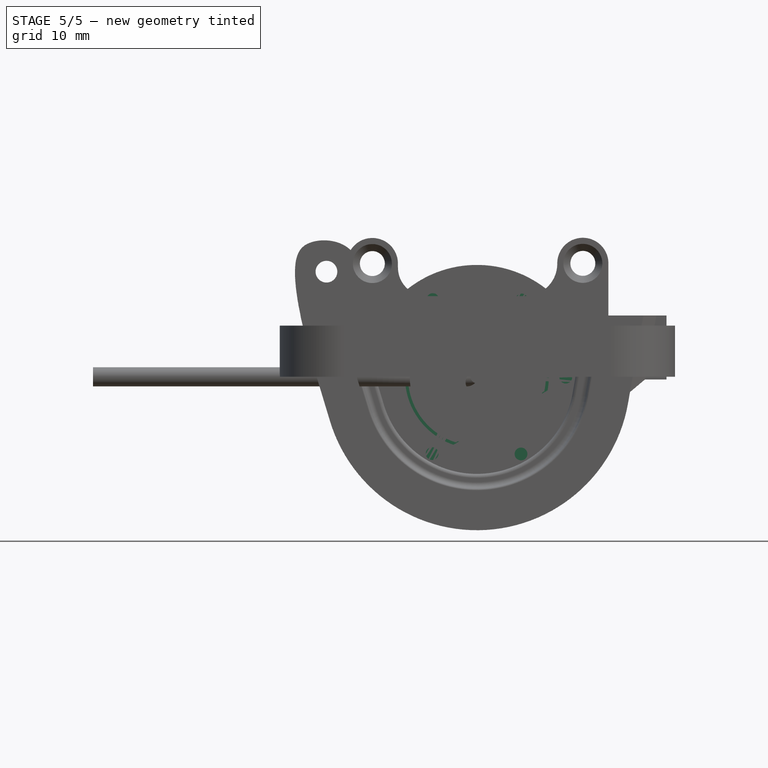
[diagram: stage 5 of 5 — front view after this stage's code; geometry added in this stage tinted green]
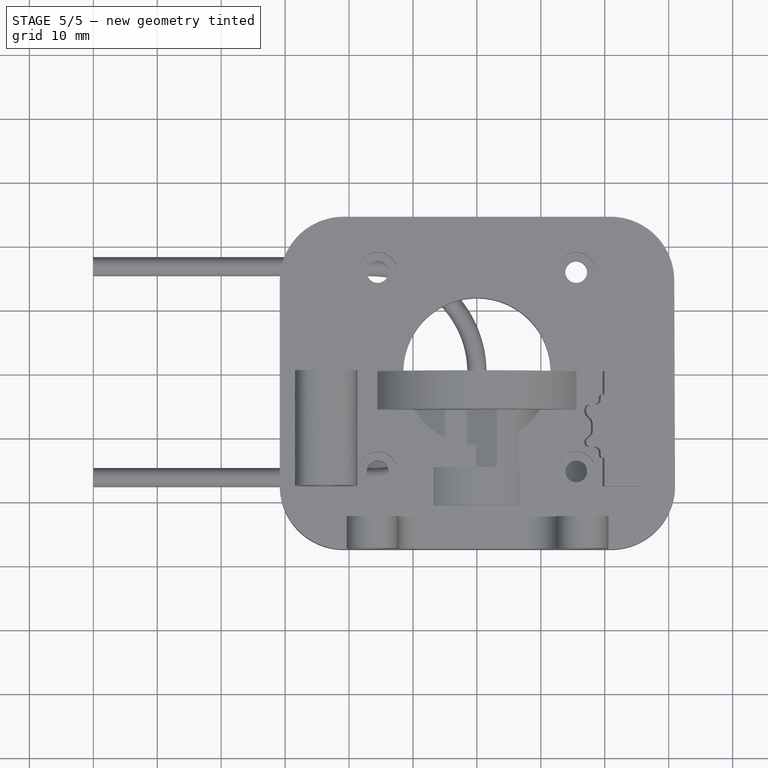
[diagram: stage 5 of 5 — top view after this stage's code; geometry added in this stage tinted green]
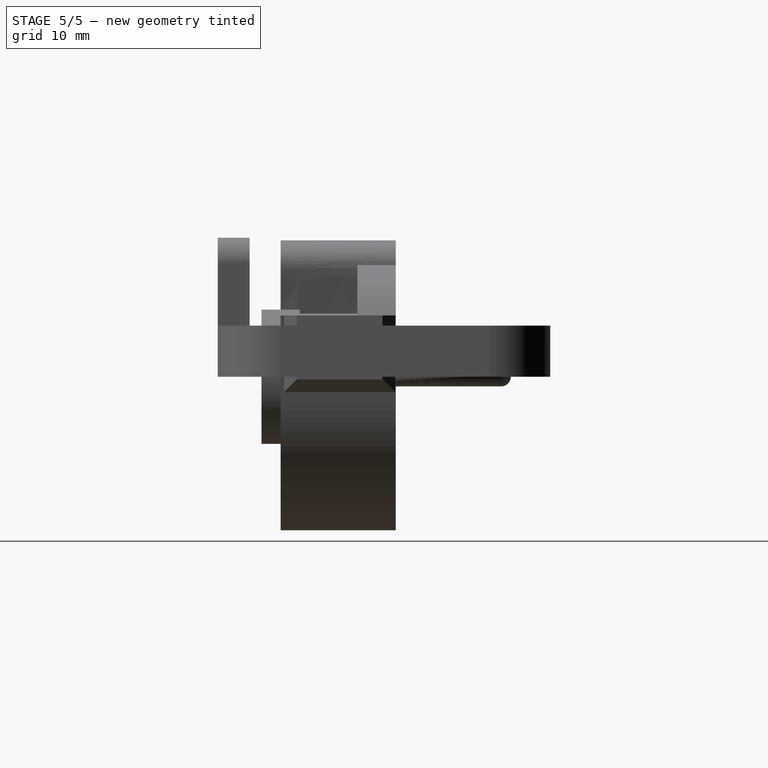
[diagram: stage 5 of 5 — right view after this stage's code; geometry added in this stage tinted green]
FEATURE [Part::Feature] Part__Feature007  label="M3 L=8"
  Placement = pos=(8.66025,60,5) rot=(0,1,0;2.61799rad)
  shape: bbox 8.632 x 3.529 x 6.751 mm, 45 faces (baked)
FEATURE [Part::Feature] Part__Feature008  label="M3 L=8_2"
  Placement = pos=(8.66025,50,5) rot=(0,1,0;2.61799rad)
  shape: bbox 8.632 x 3.529 x 6.751 mm, 45 faces (baked)
FEATURE [Sketcher::SketchObject] Sketch002
  FullyConstrained = true
  MapMode = 5
  Placement = pos=(0,0,0) rot=(1,0,0;1.5708rad)
  Support = -> [XZ_Plane004]
  sketch-geometry (1):
    g0: Circle CenterX=0 CenterY=0 CenterZ=0 NormalX=0 NormalY=0 NormalZ=1 AngleXU=0 Radius=17.5
  constraints (2):
    c: Coincident(g0,g-1)
    c: Diameter(g0) = 35
FEATURE [PartDesign::Pad] Pad002
  Direction = (0,-1,2e-16)
  Length = 5
  Length2 = 10
  Placement = pos=(0,0,0) rot=(1,0,0;1.5708rad)
  Profile = -> Sketch002
  ReferenceAxis = -> Sketch002 [N_Axis]
  Type = 0
FEATURE [Sketcher::SketchObject] Sketch004
  FullyConstrained = false
  MapMode = 5
  Placement = pos=(0,0,0) rot=(-1,0,0;1.5708rad)
  Support = -> [Pad002]
  sketch-geometry (4):
    g0: ArcOfCircle CenterX=0 CenterY=0 CenterZ=0 NormalX=0 NormalY=0 NormalZ=1 AngleXU=0 Radius=10.7847 StartAngle=1.88286 EndAngle=3.35313
    g1: LineSegment StartX=10.5443 StartY=2.26439 StartZ=0 EndX=-3.31113 EndY=10.2638 EndZ=0
    g2: LineSegment StartX=3.31113 StartY=-10.2638 StartZ=0 EndX=-10.5443 EndY=-2.26439 EndZ=0
    g3: ArcOfCircle CenterX=0 CenterY=0 CenterZ=0 NormalX=0 NormalY=0 NormalZ=1 AngleXU=0 Radius=10.7847 StartAngle=5.02445 EndAngle=6.49472
  constraints (9):
    c: Coincident(g0,g-1)
    c: Parallel(g2,g1)
    c: Angle(g2,g-1) = 0.523599
    c: Coincident(g1,g3)
    c: Coincident(g1,g0)
    c: Equal(g0,g3)
    c: Coincident(g0,g2)
    c: Coincident(g0,g3)
    c: Coincident(g2,g3)
FEATURE [PartDesign::Pocket] Pocket001
  BaseFeature = -> Pad002
  Direction = (0,-1,2e-16)
  Length = 5
  Length2 = 5
  Placement = pos=(0,0,0) rot=(1,0,0;1.5708rad)
  Profile = -> Sketch004
  ReferenceAxis = -> Sketch004 [N_Axis]
  Type = 0
FEATURE [Sketcher::SketchObject] Sketch005
  FullyConstrained = false
  MapMode = 5
  Placement = pos=(0,0,0) rot=(-1,0,0;1.5708rad)
  Support = -> [Pocket001]
  sketch-geometry (5):
    g0: Circle CenterX=0 CenterY=0 CenterZ=0 NormalX=0 NormalY=0 NormalZ=1 AngleXU=0 Radius=13.8823
    g1: LineSegment StartX=10.6445 StartY=18.4368 StartZ=0 EndX=-9.77173 EndY=-16.9251 EndZ=0
    g2: LineSegment StartX=-17.3183 StartY=1.5e-15 StartZ=0 EndX=17.5837 EndY=-1.6e-15 EndZ=0
    g3: LineSegment StartX=-10.4973 StartY=18.1818 StartZ=0 EndX=10.1712 EndY=-17.6171 EndZ=0
    g4: Circle CenterX=6.94113 CenterY=-12.0224 CenterZ=0 NormalX=0 NormalY=0 NormalZ=1 AngleXU=0 Radius=1.8667
  constraints (9):
    c: Coincident(g0,g-1)
    c: PointOnObject(g0,g1)
    c: Angle(g-1,g1) = 1.0472
    c: PointOnObject(g0,g2)
    c: Angle(g2,g1) = 1.0472
    c: PointOnObject(g0,g3)
    c: Angle(g1,g3) = 1.0472
    c: PointOnObject(g4,g3)
    c: PointOnObject(g4,g0)
FEATURE [PartDesign::Hole] Hole001
  BaseFeature = -> Pocket001
  CustomThreadClearance = 0
  Depth = 2
  DepthType = 0
  Diameter = 2
  DrillForDepth = false
  DrillPoint = 1
  DrillPointAngle = 118
  HoleCutCountersinkAngle = 90
  HoleCutCustomValues = false
  HoleCutDepth = 0
  HoleCutDiameter = 6.1
  HoleCutType = 0
  ModelThread = false
  Placement = pos=(0,0,0) rot=(1,0,0;1.5708rad)
  Profile = -> Sketch005
  Tapered = false
  TaperedAngle = 90
  ThreadClass = 0
  ThreadDepth = 2
  ThreadDepthType = 0
  ThreadDirection = 0
  ThreadFit = 0
  ThreadSize = 0
  ThreadType = 0
  Threaded = false
  UseCustomThreadClearance = false
FEATURE [Sketcher::SketchObject] Sketch008
  FullyConstrained = true
  MapMode = 5
  Placement = pos=(0,0,0) rot=(1,0,0;1.5708rad)
  Support = -> [XZ_Plane009]
  sketch-geometry (1):
    g0: Circle CenterX=0 CenterY=0 CenterZ=0 NormalX=0 NormalY=0 NormalZ=1 AngleXU=0 Radius=1
  constraints (2):
    c: Coincident(g0,g-1)
    c: Diameter(g0) = 2
FEATURE [PartDesign::Pad] Pad005
  Direction = (0,-1,-2e-16)
  Length = 13
  Length2 = 10
  Placement = pos=(0,0,0) rot=(1,0,0;1.5708rad)
  Profile = -> Sketch008
  ReferenceAxis = -> Sketch008 [N_Axis]
  Type = 0
FEATURE [PartDesign::Body] Body005
  Group = -> [Sketch008,Pad005]
  Origin = -> Origin009
  Placement = pos=(0,-1,0) rot=(0,0,1;0rad)
  Tip = -> Pad005
FEATURE [Sketcher::SketchObject] Sketch009
  FullyConstrained = true
  MapMode = 5
  Placement = pos=(0,0,0) rot=(1,0,0;1.5708rad)
  Support = -> [XZ_Plane010]
  sketch-geometry (2):
    g0: Circle CenterX=0 CenterY=0 CenterZ=0 NormalX=0 NormalY=0 NormalZ=1 AngleXU=0 Radius=2
    g1: Circle CenterX=0 CenterY=0 CenterZ=0 NormalX=0 NormalY=0 NormalZ=1 AngleXU=0 Radius=1
  constraints (4):
    c: Coincident(g0,g-1)
    c: Coincident(g1,g0)
    c: Diameter(g1) = 2
    c: Diameter(g0) = 4
FEATURE [PartDesign::Pad] Pad006
  Direction = (0,-1,-2e-16)
  Length = 7
  Length2 = 10
  Placement = pos=(0,0,0) rot=(1,0,0;1.5708rad)
  Profile = -> Sketch009
  ReferenceAxis = -> Sketch009 [N_Axis]
  Type = 0
FEATURE [PartDesign::Body] Body006
  Group = -> [Sketch009,Pad006]
  Origin = -> Origin010
  Placement = pos=(0,-4.5,0) rot=(0,0,1;0rad)
  Tip = -> Pad006
FEATURE [App::Part] Part002  label="pinTefflonRoller"
  Group = -> [Body005,Body006]
  Origin = -> Origin008
  Placement = pos=(7,66,12) rot=(0,0,1;0rad)
FEATURE [PartDesign::PolarPattern] PolarPattern
  Angle = 360
  Axis = -> Sketch005 [N_Axis]
  BaseFeature = -> Hole001
  Occurrences = 6
  Originals = -> [Hole001]
  Placement = pos=(0,0,0) rot=(1,0,0;1.5708rad)
FEATURE [Part::Feature] Part__Feature009  label="M3 x 12 - Hex Flat Head - Black"
  Placement = pos=(-5.5,65.9,-3) rot=(1,0,0;4.71239rad)
  shape: bbox 5.785 x 12.23 x 5.785 mm, 210 faces (baked)
FEATURE [Sketcher::SketchObject] Sketch016
  FullyConstrained = true
  MapMode = 5
  Placement = pos=(0,0,0) rot=(1,0,0;1.5708rad)
  Support = -> [XZ_Plane013]
  sketch-geometry (1):
    g0: Circle CenterX=0 CenterY=0 CenterZ=0 NormalX=0 NormalY=0 NormalZ=1 AngleXU=0 Radius=1
  constraints (2):
    c: Coincident(g0,g-1)
    c: Diameter(g0) = 2
FEATURE [PartDesign::Pad] Pad008
  Direction = (0,-1,-2e-16)
  Length = 13
  Length2 = 10
  Placement = pos=(0,0,0) rot=(1,0,0;1.5708rad)
  Profile = -> Sketch016
  ReferenceAxis = -> Sketch016 [N_Axis]
  Type = 0
FEATURE [PartDesign::Body] Body008
  Group = -> [Sketch016,Pad008]
  Origin = -> Origin013
  Placement = pos=(0,-1,0) rot=(0,0,1;0rad)
  Tip = -> Pad008
FEATURE [Sketcher::SketchObject] Sketch017
  FullyConstrained = true
  MapMode = 5
  Placement = pos=(0,0,0) rot=(1,0,0;1.5708rad)
  Support = -> [XZ_Plane014]
  sketch-geometry (2):
    g0: Circle CenterX=0 CenterY=0 CenterZ=0 NormalX=0 NormalY=0 NormalZ=1 AngleXU=0 Radius=2
    g1: Circle CenterX=0 CenterY=0 CenterZ=0 NormalX=0 NormalY=0 NormalZ=1 AngleXU=0 Radius=1
  constraints (4):
    c: Coincident(g0,g-1)
    c: Coincident(g1,g0)
    c: Diameter(g1) = 2
    c: Diameter(g0) = 4
FEATURE [PartDesign::Pad] Pad009
  Direction = (0,-1,-2e-16)
  Length = 7
  Length2 = 10
  Placement = pos=(0,0,0) rot=(1,0,0;1.5708rad)
  Profile = -> Sketch017
  ReferenceAxis = -> Sketch017 [N_Axis]
  Type = 0
FEATURE [PartDesign::Body] Body009
  Group = -> [Sketch017,Pad009]
  Origin = -> Origin014
  Placement = pos=(0,-4.5,0) rot=(0,0,1;0rad)
  Tip = -> Pad009
FEATURE [App::Part] Part003  label="pinTefflonRoller001"
  Group = -> [Body008,Body009]
  Origin = -> Origin012
  Placement = pos=(-6.9,66,12) rot=(0,0,1;0rad)
FEATURE [Sketcher::SketchObject] Sketch018
  FullyConstrained = true
  MapMode = 5
  Placement = pos=(0,0,0) rot=(1,0,0;1.5708rad)
  Support = -> [XZ_Plane016]
  sketch-geometry (1):
    g0: Circle CenterX=0 CenterY=0 CenterZ=0 NormalX=0 NormalY=0 NormalZ=1 AngleXU=0 Radius=1
  constraints (2):
    c: Coincident(g0,g-1)
    c: Diameter(g0) = 2
FEATURE [PartDesign::Pad] Pad010
  Direction = (0,-1,-2e-16)
  Length = 13
  Length2 = 10
  Placement = pos=(0,0,0) rot=(1,0,0;1.5708rad)
  Profile = -> Sketch018
  ReferenceAxis = -> Sketch018 [N_Axis]
  Type = 0
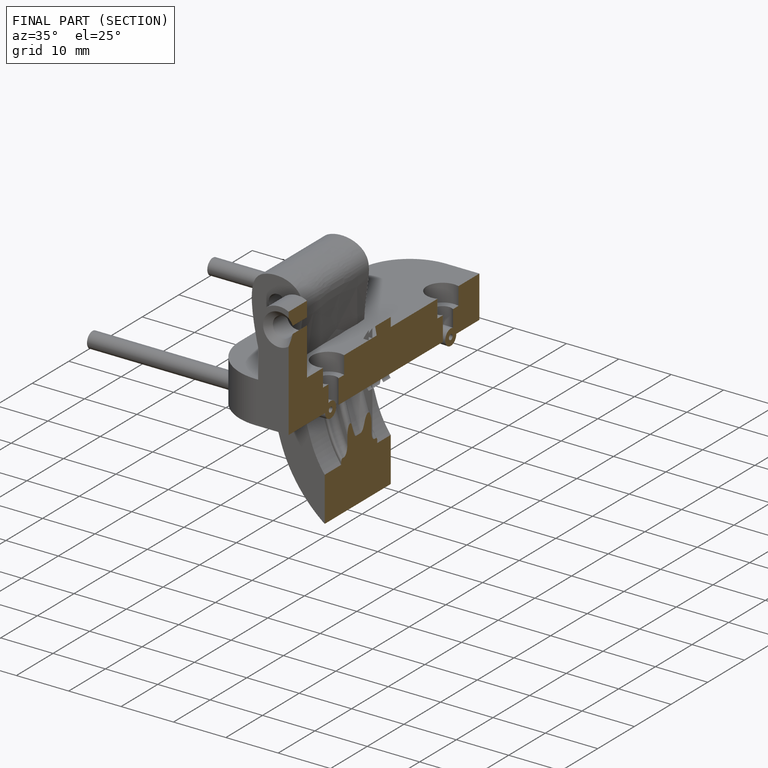
[diagram: finished part — half-section view (interior)]
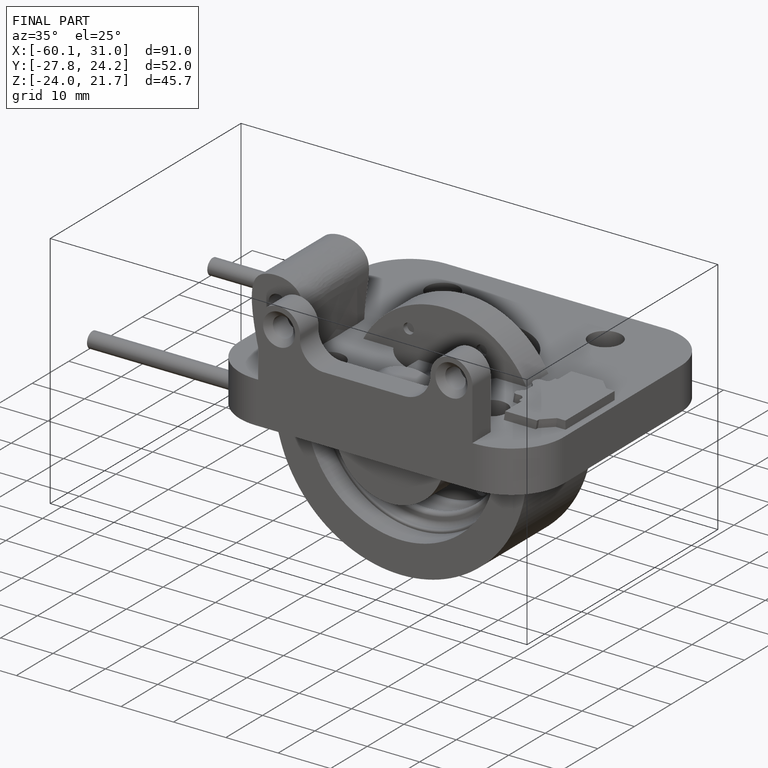
[diagram: finished part — iso view with bounding-box wireframe]
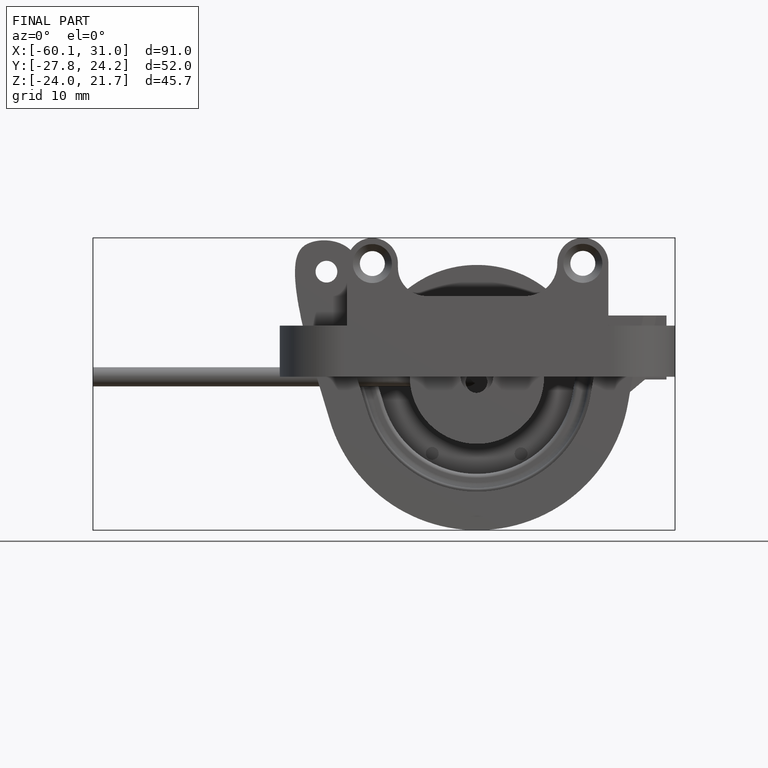
[diagram: finished part — front view with bounding-box wireframe]
